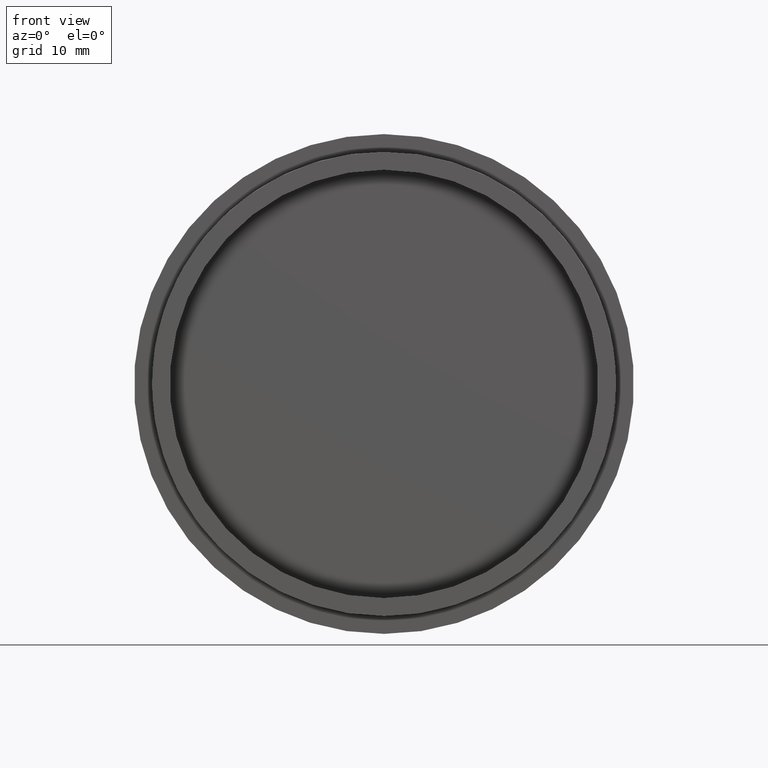
[diagram: clean part render]
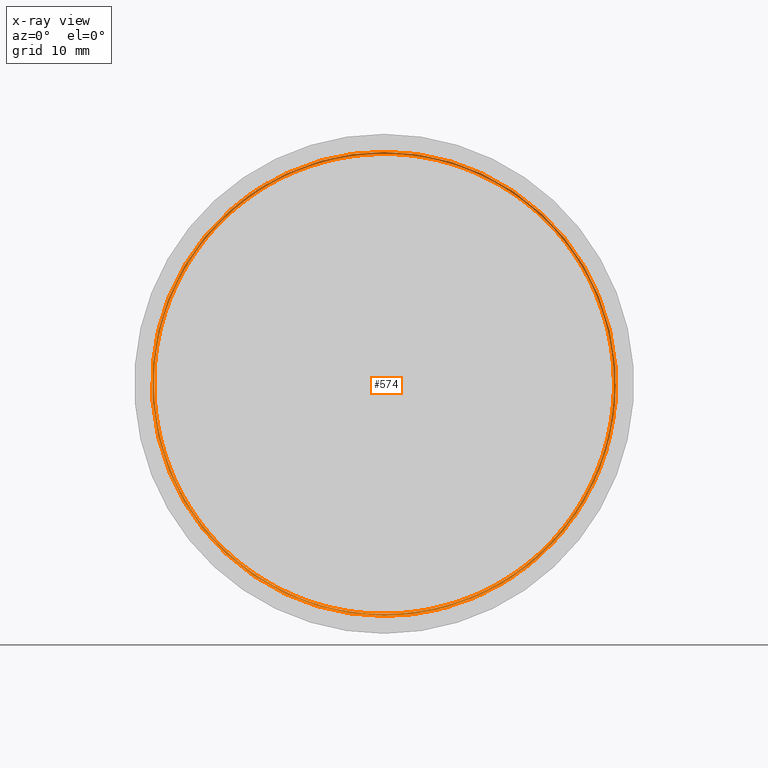
[diagram: x-ray — body ghosted, one internal face saturated and labeled with its STEP entity id]
A machine part, front view, then the same camera in x-ray: the body is ghosted and one INTERNAL B-rep face — a face not visible from any outside direction — is saturated and labeled: STEP entity #574.
In plain terms, the highlighted face is a freeform B-spline surface patch.
Its self-contained STEP definition (entity closure, byte-faithful):
#1 = CARTESIAN_POINT ( 'NONE',  ( -25.82814808468750911, 2.771093749566424069, 10.69836922765823672 ) ) ;
#6 = CARTESIAN_POINT ( 'NONE',  ( 10.69836922765824738, 3.708593749566424513, 25.82814808468749490 ) ) ;
#7 = CARTESIAN_POINT ( 'NONE',  ( 1.592040838891559095E-15, 3.937500000000000000, -26.00000000000000000 ) ) ;
#9 = CARTESIAN_POINT ( 'NONE',  ( -18.38477631085023845, 1.968750000000000000, 18.38477631085023134 ) ) ;
#11 = CARTESIAN_POINT ( 'NONE',  ( 25.99999999999999289, 4.453125000000000888, 10.76955262170048933 ) ) ;
#24 = CARTESIAN_POINT ( 'NONE',  ( -25.82814808468749845, 2.724218749566424069, -3.163035887981638799E-15 ) ) ;
#30 = CARTESIAN_POINT ( 'NONE',  ( -25.82814808468749845, 4.177343749566424513, -10.69836922765824383 ) ) ;
#48 = CARTESIAN_POINT ( 'NONE',  ( 25.82814808468749135, 3.802343749566424513, 10.69836922765825982 ) ) ;
#50 = VERTEX_POINT ( 'NONE', #1475 ) ;
#57 = CARTESIAN_POINT ( 'NONE',  ( -18.38477631085023845, 1.218750000000000000, 18.38477631085023134 ) ) ;
#58 = CARTESIAN_POINT ( 'NONE',  ( 1.592040838891559095E-15, 2.437500000000000000, -26.00000000000000000 ) ) ;
#87 = CARTESIAN_POINT ( 'NONE',  ( 18.26325865617286937, 4.692968749566424513, -18.26325865617286937 ) ) ;
#107 = CARTESIAN_POINT ( 'NONE',  ( 1.592040838891559095E-15, 0.9375000000000000000, -26.00000000000000000 ) ) ;
#116 = CARTESIAN_POINT ( 'NONE',  ( 25.82814808468749845, 3.849218749566424069, 0.000000000000000000 ) ) ;
#137 = CARTESIAN_POINT ( 'NONE',  ( -26.00000000000000000, 3.375000000000000000, -3.184081677783118191E-15 ) ) ;
#138 = CARTESIAN_POINT ( 'NONE',  ( -4.776122516674677089E-15, 2.812500000000000000, 26.00000000000000000 ) ) ;
#144 = CARTESIAN_POINT ( 'NONE',  ( 10.76955262170047689, 4.359375000000000000, 25.99999999999999645 ) ) ;
#168 = CARTESIAN_POINT ( 'NONE',  ( 1.592040838891559095E-15, 3.937500000000000000, -26.00000000000000000 ) ) ;
#170 = ORIENTED_EDGE ( 'NONE', *, *, #4417, .T. ) ;
#175 = CARTESIAN_POINT ( 'NONE',  ( 18.38477631085023489, 4.593750000000000000, -18.38477631085023489 ) ) ;
#176 = VERTEX_POINT ( 'NONE', #138 ) ;
#184 = CARTESIAN_POINT ( 'NONE',  ( -26.00000000000001066, 4.171875000000000888, 10.76955262170046623 ) ) ;
#196 = CARTESIAN_POINT ( 'NONE',  ( -10.76955262170047156, 3.234375000000000888, -26.00000000000000000 ) ) ;
#211 = CARTESIAN_POINT ( 'NONE',  ( 18.38477631085022779, 1.406250000000000000, 18.38477631085023845 ) ) ;
#223 = CARTESIAN_POINT ( 'NONE',  ( -10.76955262170047156, 0.2343750000000000000, -26.00000000000000000 ) ) ;
#226 = CARTESIAN_POINT ( 'NONE',  ( -4.776122516674677089E-15, 3.562500000000000000, 26.00000000000000000 ) ) ;
#232 = CARTESIAN_POINT ( 'NONE',  ( -18.26325865617286581, 1.130468749566424069, -18.26325865617286937 ) ) ;
#239 = CARTESIAN_POINT ( 'NONE',  ( 1.592040838891559095E-15, 2.437500000000000000, -26.00000000000000000 ) ) ;
#259 = CARTESIAN_POINT ( 'NONE',  ( -10.69836922765825626, 0.6148437495664240693, 25.82814808468749135 ) ) ;
#266 = CARTESIAN_POINT ( 'NONE',  ( -18.38477631085023134, 2.531250000000000000, -18.38477631085023489 ) ) ;
#285 = CARTESIAN_POINT ( 'NONE',  ( 10.69836922765824738, 2.208593749566424069, 25.82814808468749490 ) ) ;
#288 = CARTESIAN_POINT ( 'NONE',  ( -25.82814808468750911, 0.5210937495664241803, 10.69836922765823672 ) ) ;
#293 = CARTESIAN_POINT ( 'NONE',  ( 10.76955262170047511, 2.390625000000000000, -26.00000000000000000 ) ) ;
#312 = CARTESIAN_POINT ( 'NONE',  ( -4.744553831972457804E-15, 0.6617187495664241803, 25.82814808468749845 ) ) ;
#314 = ORIENTED_EDGE ( 'NONE', *, *, #1505, .T. ) ;
#322 = CARTESIAN_POINT ( 'NONE',  ( 26.00000000000000000, 4.500000000000000888, 0.000000000000000000 ) ) ;
#360 = CARTESIAN_POINT ( 'NONE',  ( -18.26325865617286581, 4.880468749566424513, -18.26325865617286937 ) ) ;
#363 = CARTESIAN_POINT ( 'NONE',  ( -18.26325865617287292, 1.317968749566424291, 18.26325865617286581 ) ) ;
#383 = CARTESIAN_POINT ( 'NONE',  ( -18.26325865617287292, 4.317968749566424513, 18.26325865617286581 ) ) ;
#384 = CARTESIAN_POINT ( 'NONE',  ( 26.00000000000000000, 1.500000000000000000, 0.000000000000000000 ) ) ;
#386 = CARTESIAN_POINT ( 'NONE',  ( 25.82814808468749845, 1.599218749566424069, 0.000000000000000000 ) ) ;
#391 = CARTESIAN_POINT ( 'NONE',  ( -26.00000000000000000, 2.578125000000000000, -10.76955262170047334 ) ) ;
#407 = CARTESIAN_POINT ( 'NONE',  ( -10.69836922765824028, 4.833593749566424513, -25.82814808468749845 ) ) ;
#410 = CARTESIAN_POINT ( 'NONE',  ( 25.82814808468749845, 2.349218749566424069, 0.000000000000000000 ) ) ;
#412 = LINE ( 'NONE', #4266, #416 ) ;
#414 = CARTESIAN_POINT ( 'NONE',  ( -26.00000000000000000, 2.625000000000000000, -3.184081677783118191E-15 ) ) ;
#415 = CARTESIAN_POINT ( 'NONE',  ( 10.76955262170047511, 0.8906250000000001110, -26.00000000000000000 ) ) ;
#416 = VECTOR ( 'NONE', #5474, 1000.000000000000114 ) ;
#433 = CARTESIAN_POINT ( 'NONE',  ( -10.69836922765824028, 2.583593749566424069, -25.82814808468749845 ) ) ;
#439 = CARTESIAN_POINT ( 'NONE',  ( 10.69836922765824738, 4.458593749566424513, 25.82814808468749490 ) ) ;
#454 = CARTESIAN_POINT ( 'NONE',  ( -25.82814808468750911, 3.521093749566424513, 10.69836922765823672 ) ) ;
#462 = CARTESIAN_POINT ( 'NONE',  ( -26.00000000000000000, 1.125000000000000222, -3.184081677783118191E-15 ) ) ;
#473 = CARTESIAN_POINT ( 'NONE',  ( 1.592040838891559095E-15, 0.9375000000000000000, -26.00000000000000000 ) ) ;
#491 = CARTESIAN_POINT ( 'NONE',  ( -26.00000000000000000, 1.078125000000000222, -10.76955262170047511 ) ) ;
#513 = ORIENTED_EDGE ( 'NONE', *, *, #3459, .T. ) ;
#521 = CARTESIAN_POINT ( 'NONE',  ( -25.82814808468749845, 4.974218749566424513, -3.163035887981638799E-15 ) ) ;
#541 = CARTESIAN_POINT ( 'NONE',  ( 26.00000000000000000, 3.750000000000000000, 0.000000000000000000 ) ) ;
#543 = ORIENTED_EDGE ( 'NONE', *, *, #3501, .T. ) ;
#574 = ADVANCED_FACE ( 'NONE', ( #1617 ), #1287, .T. ) ;
#586 = CARTESIAN_POINT ( 'NONE',  ( -26.00000000000000000, 4.078125000000000000, -10.76955262170047511 ) ) ;
#595 = CARTESIAN_POINT ( 'NONE',  ( -10.76955262170042005, 4.734374999999999112, -26.00000000000004263 ) ) ;
#601 = CARTESIAN_POINT ( 'NONE',  ( -18.38477631085023845, 1.218750000000000000, 18.38477631085023134 ) ) ;
#617 = CARTESIAN_POINT ( 'NONE',  ( -26.00000000000000000, 1.875000000000000000, -3.184081677783118191E-15 ) ) ;
#630 = CARTESIAN_POINT ( 'NONE',  ( 25.99999999999999289, 3.703125000000000444, 10.76955262170048933 ) ) ;
#645 = CARTESIAN_POINT ( 'NONE',  ( -26.00000000000001066, 2.671875000000000000, 10.76955262170046623 ) ) ;
#649 = VERTEX_POINT ( 'NONE', #1232 ) ;
#656 = CARTESIAN_POINT ( 'NONE',  ( -10.76955262170047867, 0.5156250000000000000, 25.99999999999999645 ) ) ;
#664 = CARTESIAN_POINT ( 'NONE',  ( 18.26325865617286937, 1.692968749566424069, -18.26325865617286937 ) ) ;
#672 = CARTESIAN_POINT ( 'NONE',  ( 26.00000000000000000, 3.000000000000000000, 0.000000000000000000 ) ) ;
#676 = VERTEX_POINT ( 'NONE', #7 ) ;
#692 = CARTESIAN_POINT ( 'NONE',  ( -10.69836922765824028, 1.083593749566424069, -25.82814808468749845 ) ) ;
#700 = CARTESIAN_POINT ( 'NONE',  ( 25.99999999999999289, 2.203125000000000000, 10.76955262170048933 ) ) ;
#711 = CARTESIAN_POINT ( 'NONE',  ( 26.00000000000000000, 0.04687500000000002776, -10.76955262170047334 ) ) ;
#721 = CARTESIAN_POINT ( 'NONE',  ( -10.69836922765825626, 1.364843749566424291, 25.82814808468749135 ) ) ;
#726 = CARTESIAN_POINT ( 'NONE',  ( 1.592040838891559095E-15, 2.437500000000000000, -26.00000000000000000 ) ) ;
#745 = CARTESIAN_POINT ( 'NONE',  ( -10.69836922765824028, 1.833593749566424291, -25.82814808468749845 ) ) ;
#748 = CARTESIAN_POINT ( 'NONE',  ( -10.69836922765824028, 0.3335937495664240693, -25.82814808468749845 ) ) ;
#758 = CARTESIAN_POINT ( 'NONE',  ( 18.38477631085022779, 2.906250000000000000, 18.38477631085023845 ) ) ;
#770 = CARTESIAN_POINT ( 'NONE',  ( -25.82814808468749845, 3.474218749566424069, -3.163035887981638799E-15 ) ) ;
#774 = CARTESIAN_POINT ( 'NONE',  ( 10.69836922765824738, 0.7085937495664241803, 25.82814808468749490 ) ) ;
#797 = CARTESIAN_POINT ( 'NONE',  ( 25.82814808468749845, 4.646093749566424513, -10.69836922765824205 ) ) ;
#800 = CARTESIAN_POINT ( 'NONE',  ( 18.26325865617286226, 1.505468749566423847, 18.26325865617287292 ) ) ;
#805 = CARTESIAN_POINT ( 'NONE',  ( -26.00000000000001066, 2.671875000000000000, 10.76955262170046623 ) ) ;
#812 = CARTESIAN_POINT ( 'NONE',  ( 10.76955262170047689, 2.859375000000000000, 25.99999999999999645 ) ) ;
#822 = CARTESIAN_POINT ( 'NONE',  ( 18.26325865617286226, 4.505468749566424513, 18.26325865617287292 ) ) ;
#826 = CARTESIAN_POINT ( 'NONE',  ( -25.82814808468749845, 1.974218749566423847, -3.163035887981638799E-15 ) ) ;
#831 = CARTESIAN_POINT ( 'NONE',  ( -4.776122516674677089E-15, 2.812500000000000000, 26.00000000000000000 ) ) ;
#833 = CARTESIAN_POINT ( 'NONE',  ( 18.38477631085022779, 0.6562500000000000000, 18.38477631085023845 ) ) ;
#850 = CARTESIAN_POINT ( 'NONE',  ( -25.82814808468749845, 4.177343749566424513, -10.69836922765824383 ) ) ;
#853 = CARTESIAN_POINT ( 'NONE',  ( -18.26325865617286581, 2.630468749566424069, -18.26325865617286937 ) ) ;
#859 = CARTESIAN_POINT ( 'NONE',  ( -10.69836922765825626, 3.614843749566424513, 25.82814808468749135 ) ) ;
#877 = CARTESIAN_POINT ( 'NONE',  ( 10.69836922765824383, 3.989843749566424957, -25.82814808468749845 ) ) ;
#885 = CARTESIAN_POINT ( 'NONE',  ( 1.581517943990819399E-15, 4.036718749566424513, -25.82814808468749845 ) ) ;
#907 = CARTESIAN_POINT ( 'NONE',  ( 25.99999999999999289, 2.203125000000000000, 10.76955262170048933 ) ) ;
#911 = CARTESIAN_POINT ( 'NONE',  ( 1.592040838891559095E-15, 0.1875000000000000000, -26.00000000000000000 ) ) ;
#915 = CARTESIAN_POINT ( 'NONE',  ( -10.76955262170044669, 1.734374999999999778, -26.00000000000002487 ) ) ;
#939 = CARTESIAN_POINT ( 'NONE',  ( 26.00000000000000000, 4.546875000000000000, -10.76955262170047334 ) ) ;
#941 = CARTESIAN_POINT ( 'NONE',  ( 10.76955262170047511, 0.1406250000000000278, -26.00000000000000000 ) ) ;
#963 = CARTESIAN_POINT ( 'NONE',  ( 10.76955262170048577, 0.8906249999999998890, -25.99999999999998579 ) ) ;
#979 =( BOUNDED_CURVE ( )  B_SPLINE_CURVE ( 2, ( #2448, #4893, #4106, #1953, #3227, #4134, #2833, #4471, #4947, #1614, #2422, #259, #312, #2882, #3697, #5335, #5393, #2030, #5365, #1509, #1591, #692, #232, #3308, #3721, #4026, #3283, #5000, #2778, #2861, #1564, #4975, #1925, #1174, #664, #4554, #2396, #745, #5418, #4921, #2368, #3618, #1117, #2807, #4580, #285, #5308, #4499, #1978, #3013, #2578, #3376, #3845, #2932, #2499, #1664, #3330, #1689, #4187, #2526, #5468, #2108, #1327, #5097, #4633, #3404, #2059, #5021, #1639, #3354, #1221, #1299, #770, #454, #2908, #4211, #3793, #4608, #5491, #48, #4262, #2986, #4687, #877, #3744, #1270, #2159, #850, #1743, #2959, #383, #3432, #5046, #1716, #822, #1247, #5125, #797, #2553, #2473, #4161, #407, #360, #2083, #5071, #3769, #4659, #4236, #5441 ),
 .UNSPECIFIED., .F., .F. ) 
 B_SPLINE_CURVE_WITH_KNOTS ( ( 3, 2, 2, 2, 2, 2, 2, 2, 2, 2, 2, 2, 2, 2, 2, 2, 2, 2, 2, 2, 2, 2, 2, 2, 2, 2, 2, 2, 2, 2, 2, 2, 2, 2, 2, 2, 2, 2, 2, 2, 2, 2, 2, 2, 2, 2, 2, 2, 2, 2, 2, 2, 2, 2, 3 ),
 ( 0.000000000000000000, 0.01785714285714285615, 0.03571428571428571230, 0.05357142857142856845, 0.07142857142857142461, 0.08928571428571428770, 0.1071428571428571369, 0.1250000000000000000, 0.1428571428571428492, 0.1607142857142857262, 0.1785714285714285754, 0.1964285714285714246, 0.2142857142857142738, 0.2321428571428571508, 0.2500000000000000000, 0.2678571428571428492, 0.2857142857142856984, 0.3035714285714285476, 0.3214285714285714524, 0.3392857142857143016, 0.3571428571428571508, 0.3750000000000000000, 0.3928571428571428492, 0.4107142857142856984, 0.4285714285714285476, 0.4464285714285714524, 0.4642857142857143016, 0.4821428571428571508, 0.5000000000000000000, 0.5178571428571429047, 0.5357142857142856984, 0.5535714285714286031, 0.5714285714285713969, 0.5892857142857143016, 0.6071428571428570953, 0.6250000000000000000, 0.6428571428571429047, 0.6607142857142856984, 0.6785714285714286031, 0.6964285714285713969, 0.7142857142857143016, 0.7321428571428570953, 0.7500000000000000000, 0.7678571428571429047, 0.7857142857142856984, 0.8035714285714286031, 0.8214285714285713969, 0.8392857142857143016, 0.8571428571428570953, 0.8750000000000000000, 0.8928571428571429047, 0.9107142857142856984, 0.9285714285714286031, 0.9464285714285713969, 0.9524150975706495714 ),
 .UNSPECIFIED. ) 
 CURVE ( )  GEOMETRIC_REPRESENTATION_ITEM ( )  RATIONAL_B_SPLINE_CURVE ( ( 1.000000000000000000, 0.9238795325112867385, 1.000000000000000000, 0.9238795325112867385, 1.000000000000000000, 0.9238795325112867385, 1.000000000000000000, 0.9238795325112867385, 1.000000000000000000, 0.9238795325112867385, 1.000000000000000000, 0.9238795325112867385, 1.000000000000000000, 0.9238795325112867385, 1.000000000000000000, 0.9238795325112867385, 1.000000000000000000, 0.9238795325112867385, 1.000000000000000000, 0.9238795325112867385, 1.000000000000000000, 0.9238795325112867385, 1.000000000000000000, 0.9238795325112867385, 1.000000000000000000, 0.9238795325112867385, 1.000000000000000000, 0.9238795325112867385, 1.000000000000000000, 0.9238795325112867385, 1.000000000000000000, 0.9238795325112867385, 1.000000000000000000, 0.9238795325112867385, 1.000000000000000000, 0.9238795325112867385, 1.000000000000000000, 0.9238795325112867385, 1.000000000000000000, 0.9238795325112867385, 1.000000000000000000, 0.9238795325112867385, 1.000000000000000000, 0.9238795325112867385, 1.000000000000000000, 0.9238795325112867385, 1.000000000000000000, 0.9238795325112867385, 1.000000000000000000, 0.9238795325112867385, 1.000000000000000000, 0.9238795325112867385, 1.000000000000000000, 0.9238795325112867385, 1.000000000000000000, 0.9238795325112867385, 1.000000000000000000, 0.9238795325112867385, 1.000000000000000000, 0.9238795325112867385, 1.000000000000000000, 0.9238795325112867385, 1.000000000000000000, 0.9238795325112867385, 1.000000000000000000, 0.9238795325112867385, 1.000000000000000000, 0.9238795325112867385, 1.000000000000000000, 0.9238795325112867385, 1.000000000000000000, 0.9238795325112867385, 1.000000000000000000, 0.9238795325112867385, 1.000000000000000000, 0.9238795325112867385, 1.000000000000000000, 0.9238795325112867385, 1.000000000000000000, 0.9238795325112867385, 1.000000000000000000, 0.9238795325112867385, 1.000000000000000000, 0.9238795325112867385, 1.000000000000000000, 0.9238795325112867385, 1.000000000000000000, 0.9238795325112867385, 1.000000000000000000, 0.9238795325112867385, 1.000000000000000000, 0.9238795325112867385, 1.000000000000000000, 0.9238795325112867385, 1.000000000000000000, 0.9238795325112867385, 1.000000000000000000, 0.9238795325112867385, 1.000000000000000000, 0.9238795325112867385, 1.000000000000000000, 0.9238795325112867385, 1.000000000000000000, 0.9238795325112867385, 1.000000000000000000, 0.9238795325112867385, 1.000000000000000000, 0.9744809585601700297, 0.9660722028947756890 ) ) 
 REPRESENTATION_ITEM ( '' )  );
#994 = CARTESIAN_POINT ( 'NONE',  ( 1.592040838891559095E-15, 0.9375000000000000000, -26.00000000000000000 ) ) ;
#996 = ORIENTED_EDGE ( 'NONE', *, *, #3794, .T. ) ;
#1011 = CARTESIAN_POINT ( 'NONE',  ( -12.91407256288082728, 5.098855568033193286, 22.36783322821402109 ) ) ;
#1022 = CARTESIAN_POINT ( 'NONE',  ( 1.592040838891559095E-15, 0.1875000000000000000, -26.00000000000000000 ) ) ;
#1038 = CARTESIAN_POINT ( 'NONE',  ( 18.38477631085023489, 3.843750000000000000, -18.38477631085023489 ) ) ;
#1050 = CARTESIAN_POINT ( 'NONE',  ( 18.38477631085022779, 2.156250000000000000, 18.38477631085023845 ) ) ;
#1054 = CARTESIAN_POINT ( 'NONE',  ( 10.76955262170048222, 0.6093750000000001110, 25.99999999999998934 ) ) ;
#1070 = CARTESIAN_POINT ( 'NONE',  ( 1.592040838891559095E-15, 3.937500000000000000, -26.00000000000000000 ) ) ;
#1080 = CARTESIAN_POINT ( 'NONE',  ( -4.776122516674677089E-15, 2.062500000000000000, 26.00000000000000000 ) ) ;
#1097 = CARTESIAN_POINT ( 'NONE',  ( -18.38477631085023845, 4.218750000000000000, 18.38477631085023134 ) ) ;
#1109 = CARTESIAN_POINT ( 'NONE',  ( 26.00000000000000000, 2.250000000000000444, 0.000000000000000000 ) ) ;
#1117 = CARTESIAN_POINT ( 'NONE',  ( -18.26325865617287292, 2.067968749566424069, 18.26325865617286581 ) ) ;
#1120 = CARTESIAN_POINT ( 'NONE',  ( -18.26325865617286581, 1.880468749566424291, -18.26325865617286937 ) ) ;
#1127 = CARTESIAN_POINT ( 'NONE',  ( 26.00000000000000000, 2.250000000000000444, 0.000000000000000000 ) ) ;
#1140 =( BOUNDED_CURVE ( )  B_SPLINE_CURVE ( 2, ( #4768, #1054, #2747, #1831, #4861, #4799, #3104, #963, #107 ),
 .UNSPECIFIED., .F., .F. ) 
 B_SPLINE_CURVE_WITH_KNOTS ( ( 3, 2, 2, 2, 3 ),
 ( 0.1071428571428571508, 0.1250000000000000000, 0.1428571428571428492, 0.1607142857142856984, 0.1785714285714285476 ),
 .UNSPECIFIED. ) 
 CURVE ( )  GEOMETRIC_REPRESENTATION_ITEM ( )  RATIONAL_B_SPLINE_CURVE ( ( 0.9999999999999998890, 0.9238795325112868495, 1.000000000000000000, 0.9238795325112867385, 1.000000000000000000, 0.9238795325112867385, 1.000000000000000000, 0.9238795325112868495, 0.9999999999999998890 ) ) 
 REPRESENTATION_ITEM ( '' )  );
#1143 = ORIENTED_EDGE ( 'NONE', *, *, #1665, .T. ) ;
#1155 = CARTESIAN_POINT ( 'NONE',  ( -26.00000000000000000, 2.625000000000000000, -3.184081677783118191E-15 ) ) ;
#1174 = CARTESIAN_POINT ( 'NONE',  ( 25.82814808468749845, 1.646093749566424069, -10.69836922765824205 ) ) ;
#1185 = CARTESIAN_POINT ( 'NONE',  ( -4.776122516674677089E-15, 2.812500000000000000, 26.00000000000000000 ) ) ;
#1199 = CARTESIAN_POINT ( 'NONE',  ( -25.82814808468749845, 0.4742187495664241248, -3.163035887981638799E-15 ) ) ;
#1205 = CARTESIAN_POINT ( 'NONE',  ( -10.76955262170048577, 2.765625000000000000, 25.99999999999999289 ) ) ;
#1221 = CARTESIAN_POINT ( 'NONE',  ( -18.26325865617286581, 3.380468749566424069, -18.26325865617286937 ) ) ;
#1225 = CARTESIAN_POINT ( 'NONE',  ( -18.26325865617287292, 0.5679687495664240693, 18.26325865617286581 ) ) ;
#1232 = CARTESIAN_POINT ( 'NONE',  ( 1.592040838891559095E-15, 3.187500000000000444, -26.00000000000000000 ) ) ;
#1247 = CARTESIAN_POINT ( 'NONE',  ( 25.82814808468749135, 4.552343749566424513, 10.69836922765825982 ) ) ;
#1250 = CARTESIAN_POINT ( 'NONE',  ( -18.26325865617287292, 2.817968749566424069, 18.26325865617286581 ) ) ;
#1254 = CARTESIAN_POINT ( 'NONE',  ( 25.82814808468749135, 4.552343749566425402, 10.69836922765825982 ) ) ;
#1256 = CARTESIAN_POINT ( 'NONE',  ( 10.76955262170047511, 4.640625000000000000, -26.00000000000000000 ) ) ;
#1270 = CARTESIAN_POINT ( 'NONE',  ( -10.69836922765824028, 4.083593749566424513, -25.82814808468749845 ) ) ;
#1273 = CARTESIAN_POINT ( 'NONE',  ( 18.26325865617286226, 3.005468749566424069, 18.26325865617287292 ) ) ;
#1278 = CARTESIAN_POINT ( 'NONE',  ( -12.91407256288082728, 5.098855568033194174, 22.36783322821402109 ) ) ;
#1287 =( BOUNDED_SURFACE ( )  B_SPLINE_SURFACE ( 1, 2, ( 
 ( #1594, #1982, #4557, #5003, #5444, #748, #4950, #2452, #1199, #288, #1225, #4583, #1567, #774, #2477, #2911, #3286, #3701, #4529, #1642, #4611, #2034, #3674, #4502, #4164, #5396, #363, #721, #4978, #3747, #800, #2503, #386, #3647, #5339, #1539, #3230, #4924, #1120, #3797, #826, #3821, #2557, #5074, #1670, #5049, #2962, #4214, #410, #1692, #2529, #1719, #2086, #433, #853, #4239, #24, #1, #1250, #2136, #3380, #3407, #1273, #2936, #4636, #5100, #3772, #1302, #2112, #4662, #2989, #5471, #3357, #2191, #4748, #859, #1334, #6, #2994, #1364, #116, #5163, #2562, #3053, #885, #2639, #3022, #30, #4327, #3911, #3879, #1698, #3385, #439, #1749, #1254, #4719, #3503, #87, #5079, #4270, #2142, #4668, #2586, #521, #1811, #5132, #2941, #1278 ),
 ( #1781, #3827, #4693, #941, #911, #2223, #4641, #2610, #3853, #4245, #1724, #2967, #3471, #4294, #833, #2534, #3411, #3802, #4220, #415, #5106, #2117, #1308, #491, #462, #2166, #57, #3440, #4523, #4007, #211, #1545, #3653, #1988, #4034, #4452, #1904, #2404, #5374, #4479, #617, #1457, #5345, #2349, #2788, #2734, #5286, #700, #1127, #1516, #4875, #293, #239, #4090, #266, #2814, #1155, #645, #3594, #3680, #1961, #4902, #5257, #4846, #672, #3180, #2761, #1932, #1488, #1574, #2292, #3237, #4063, #2378, #4508, #3625, #3147, #4930, #5316, #3264, #3209, #4425, #1038, #4956, #1070, #2322, #2841, #586, #3977, #184, #1097, #1876, #3566, #2535, #5426, #3707, #322, #2916, #2429, #1256, #3292, #1700, #5008, #2015, #3803, #4983, #2870, #5031, #3315 ) ),
 .UNSPECIFIED., .F., .F., .F. ) 
 B_SPLINE_SURFACE_WITH_KNOTS ( ( 2, 2 ),
 ( 3, 2, 2, 2, 2, 2, 2, 2, 2, 2, 2, 2, 2, 2, 2, 2, 2, 2, 2, 2, 2, 2, 2, 2, 2, 2, 2, 2, 2, 2, 2, 2, 2, 2, 2, 2, 2, 2, 2, 2, 2, 2, 2, 2, 2, 2, 2, 2, 2, 2, 2, 2, 2, 2, 3 ),
 ( 0.000000000000000000, 1.000000000000000000 ),
 ( 0.000000000000000000, 0.01785714285714285615, 0.03571428571428571230, 0.05357142857142856845, 0.07142857142857142461, 0.08928571428571428770, 0.1071428571428571369, 0.1250000000000000000, 0.1428571428571428492, 0.1607142857142857262, 0.1785714285714285754, 0.1964285714285714246, 0.2142857142857142738, 0.2321428571428571508, 0.2500000000000000000, 0.2678571428571428492, 0.2857142857142856984, 0.3035714285714285476, 0.3214285714285714524, 0.3392857142857143016, 0.3571428571428571508, 0.3750000000000000000, 0.3928571428571428492, 0.4107142857142856984, 0.4285714285714285476, 0.4464285714285714524, 0.4642857142857143016, 0.4821428571428571508, 0.5000000000000000000, 0.5178571428571429047, 0.5357142857142856984, 0.5535714285714286031, 0.5714285714285713969, 0.5892857142857143016, 0.6071428571428570953, 0.6250000000000000000, 0.6428571428571429047, 0.6607142857142856984, 0.6785714285714286031, 0.6964285714285713969, 0.7142857142857143016, 0.7321428571428570953, 0.7500000000000000000, 0.7678571428571429047, 0.7857142857142856984, 0.8035714285714286031, 0.8214285714285713969, 0.8392857142857143016, 0.8571428571428570953, 0.8750000000000000000, 0.8928571428571429047, 0.9107142857142856984, 0.9285714285714286031, 0.9464285714285713969, 0.9524150975706495714 ),
 .UNSPECIFIED. ) 
 GEOMETRIC_REPRESENTATION_ITEM ( )  RATIONAL_B_SPLINE_SURFACE ( (
 ( 1.000000000000000000, 0.9238795325112867385, 1.000000000000000000, 0.9238795325112867385, 1.000000000000000000, 0.9238795325112867385, 1.000000000000000000, 0.9238795325112867385, 1.000000000000000000, 0.9238795325112867385, 1.000000000000000000, 0.9238795325112867385, 1.000000000000000000, 0.9238795325112867385, 1.000000000000000000, 0.9238795325112867385, 1.000000000000000000, 0.9238795325112867385, 1.000000000000000000, 0.9238795325112867385, 1.000000000000000000, 0.9238795325112867385, 1.000000000000000000, 0.9238795325112867385, 1.000000000000000000, 0.9238795325112867385, 1.000000000000000000, 0.9238795325112867385, 1.000000000000000000, 0.9238795325112867385, 1.000000000000000000, 0.9238795325112867385, 1.000000000000000000, 0.9238795325112867385, 1.000000000000000000, 0.9238795325112867385, 1.000000000000000000, 0.9238795325112867385, 1.000000000000000000, 0.9238795325112867385, 1.000000000000000000, 0.9238795325112867385, 1.000000000000000000, 0.9238795325112867385, 1.000000000000000000, 0.9238795325112867385, 1.000000000000000000, 0.9238795325112867385, 1.000000000000000000, 0.9238795325112867385, 1.000000000000000000, 0.9238795325112867385, 1.000000000000000000, 0.9238795325112867385, 1.000000000000000000, 0.9238795325112867385, 1.000000000000000000, 0.9238795325112867385, 1.000000000000000000, 0.9238795325112867385, 1.000000000000000000, 0.9238795325112867385, 1.000000000000000000, 0.9238795325112867385, 1.000000000000000000, 0.9238795325112867385, 1.000000000000000000, 0.9238795325112867385, 1.000000000000000000, 0.9238795325112867385, 1.000000000000000000, 0.9238795325112867385, 1.000000000000000000, 0.9238795325112867385, 1.000000000000000000, 0.9238795325112867385, 1.000000000000000000, 0.9238795325112867385, 1.000000000000000000, 0.9238795325112867385, 1.000000000000000000, 0.9238795325112867385, 1.000000000000000000, 0.9238795325112867385, 1.000000000000000000, 0.9238795325112867385, 1.000000000000000000, 0.9238795325112867385, 1.000000000000000000, 0.9238795325112867385, 1.000000000000000000, 0.9238795325112867385, 1.000000000000000000, 0.9238795325112867385, 1.000000000000000000, 0.9238795325112867385, 1.000000000000000000, 0.9238795325112867385, 1.000000000000000000, 0.9238795325112867385, 1.000000000000000000, 0.9238795325112867385, 1.000000000000000000, 0.9238795325112867385, 1.000000000000000000, 0.9238795325112867385, 1.000000000000000000, 0.9744809585601700297, 0.9660722028947756890),
 ( 1.000000000000000000, 0.9238795325112867385, 1.000000000000000000, 0.9238795325112867385, 1.000000000000000000, 0.9238795325112867385, 1.000000000000000000, 0.9238795325112867385, 1.000000000000000000, 0.9238795325112867385, 1.000000000000000000, 0.9238795325112867385, 1.000000000000000000, 0.9238795325112867385, 1.000000000000000000, 0.9238795325112867385, 1.000000000000000000, 0.9238795325112867385, 1.000000000000000000, 0.9238795325112867385, 1.000000000000000000, 0.9238795325112867385, 1.000000000000000000, 0.9238795325112867385, 1.000000000000000000, 0.9238795325112867385, 1.000000000000000000, 0.9238795325112867385, 1.000000000000000000, 0.9238795325112867385, 1.000000000000000000, 0.9238795325112867385, 1.000000000000000000, 0.9238795325112867385, 1.000000000000000000, 0.9238795325112867385, 1.000000000000000000, 0.9238795325112867385, 1.000000000000000000, 0.9238795325112867385, 1.000000000000000000, 0.9238795325112867385, 1.000000000000000000, 0.9238795325112867385, 1.000000000000000000, 0.9238795325112867385, 1.000000000000000000, 0.9238795325112867385, 1.000000000000000000, 0.9238795325112867385, 1.000000000000000000, 0.9238795325112867385, 1.000000000000000000, 0.9238795325112867385, 1.000000000000000000, 0.9238795325112867385, 1.000000000000000000, 0.9238795325112867385, 1.000000000000000000, 0.9238795325112867385, 1.000000000000000000, 0.9238795325112867385, 1.000000000000000000, 0.9238795325112867385, 1.000000000000000000, 0.9238795325112867385, 1.000000000000000000, 0.9238795325112867385, 1.000000000000000000, 0.9238795325112867385, 1.000000000000000000, 0.9238795325112867385, 1.000000000000000000, 0.9238795325112867385, 1.000000000000000000, 0.9238795325112867385, 1.000000000000000000, 0.9238795325112867385, 1.000000000000000000, 0.9238795325112867385, 1.000000000000000000, 0.9238795325112867385, 1.000000000000000000, 0.9238795325112867385, 1.000000000000000000, 0.9238795325112867385, 1.000000000000000000, 0.9238795325112867385, 1.000000000000000000, 0.9238795325112867385, 1.000000000000000000, 0.9238795325112867385, 1.000000000000000000, 0.9238795325112867385, 1.000000000000000000, 0.9238795325112867385, 1.000000000000000000, 0.9238795325112867385, 1.000000000000000000, 0.9238795325112867385, 1.000000000000000000, 0.9238795325112867385, 1.000000000000000000, 0.9238795325112867385, 1.000000000000000000, 0.9238795325112867385, 1.000000000000000000, 0.9744809585601700297, 0.9660722028947756890) ) ) 
 REPRESENTATION_ITEM ( '' )  SURFACE ( )  );
#1299 = CARTESIAN_POINT ( 'NONE',  ( -25.82814808468749845, 3.427343749566424513, -10.69836922765824383 ) ) ;
#1302 = CARTESIAN_POINT ( 'NONE',  ( 10.69836922765824383, 3.239843749566424513, -25.82814808468749845 ) ) ;
#1308 = CARTESIAN_POINT ( 'NONE',  ( -18.38477631085023134, 1.031250000000000000, -18.38477631085023489 ) ) ;
#1327 = CARTESIAN_POINT ( 'NONE',  ( 18.26325865617286226, 3.005468749566424069, 18.26325865617287292 ) ) ;
#1334 = CARTESIAN_POINT ( 'NONE',  ( -4.744553831972457804E-15, 3.661718749566424069, 25.82814808468749845 ) ) ;
#1364 = CARTESIAN_POINT ( 'NONE',  ( 25.82814808468749135, 3.802343749566424957, 10.69836922765825982 ) ) ;
#1385 = CARTESIAN_POINT ( 'NONE',  ( -18.38477631085023845, 3.468750000000000000, 18.38477631085023134 ) ) ;
#1418 = CARTESIAN_POINT ( 'NONE',  ( -18.38477631085023134, 1.031250000000000000, -18.38477631085023489 ) ) ;
#1457 = CARTESIAN_POINT ( 'NONE',  ( -26.00000000000001066, 1.921875000000000000, 10.76955262170046623 ) ) ;
#1475 = CARTESIAN_POINT ( 'NONE',  ( -12.99999851069322254, 4.999818409233385275, 22.51666135824700987 ) ) ;
#1489 = ORIENTED_EDGE ( 'NONE', *, *, #1869, .T. ) ;
#1488 = CARTESIAN_POINT ( 'NONE',  ( 1.592040838891559095E-15, 3.187500000000000444, -26.00000000000000000 ) ) ;
#1499 = ORIENTED_EDGE ( 'NONE', *, *, #5149, .T. ) ;
#1501 = CARTESIAN_POINT ( 'NONE',  ( -26.00000000000001066, 3.421875000000000000, 10.76955262170046623 ) ) ;
#1505 = EDGE_CURVE ( 'NONE', #2815, #176, #3108, .T. ) ;
#1509 = CARTESIAN_POINT ( 'NONE',  ( 10.69836922765824383, 0.9898437495664241803, -25.82814808468749845 ) ) ;
#1516 = CARTESIAN_POINT ( 'NONE',  ( 26.00000000000000000, 2.296875000000000000, -10.76955262170047511 ) ) ;
#1539 = CARTESIAN_POINT ( 'NONE',  ( 10.69836922765824383, 1.739843749566424069, -25.82814808468749845 ) ) ;
#1545 = CARTESIAN_POINT ( 'NONE',  ( 25.99999999999999289, 1.453125000000000000, 10.76955262170048933 ) ) ;
#1564 = CARTESIAN_POINT ( 'NONE',  ( 18.26325865617286226, 1.505468749566423847, 18.26325865617287292 ) ) ;
#1567 = CARTESIAN_POINT ( 'NONE',  ( -4.744553831972457804E-15, 0.6617187495664241803, 25.82814808468749845 ) ) ;
#1574 = CARTESIAN_POINT ( 'NONE',  ( -10.76955262170047334, 3.234375000000000000, -26.00000000000000000 ) ) ;
#1591 = CARTESIAN_POINT ( 'NONE',  ( 1.581517943990819399E-15, 1.036718749566424069, -25.82814808468749845 ) ) ;
#1594 = CARTESIAN_POINT ( 'NONE',  ( 25.82814808468749845, 0.09921874956642411092, 0.000000000000000000 ) ) ;
#1614 = CARTESIAN_POINT ( 'NONE',  ( -25.82814808468750911, 0.5210937495664241803, 10.69836922765823672 ) ) ;
#1617 = FACE_OUTER_BOUND ( 'NONE', #3197, .T. ) ;
#1639 = CARTESIAN_POINT ( 'NONE',  ( 1.581517943990819399E-15, 3.286718749566424069, -25.82814808468749845 ) ) ;
#1642 = CARTESIAN_POINT ( 'NONE',  ( 10.69836922765824383, 0.9898437495664241803, -25.82814808468749845 ) ) ;
#1664 = CARTESIAN_POINT ( 'NONE',  ( -25.82814808468749845, 2.677343749566424069, -10.69836922765824383 ) ) ;
#1665 = EDGE_CURVE ( 'NONE', #676, #5258, #3426, .T. ) ;
#1666 = CARTESIAN_POINT ( 'NONE',  ( -4.776122516674677089E-15, 1.312500000000000000, 26.00000000000000000 ) ) ;
#1668 = VERTEX_POINT ( 'NONE', #2141 ) ;
#1670 = CARTESIAN_POINT ( 'NONE',  ( -4.744553831972457804E-15, 2.161718749566424069, 25.82814808468749845 ) ) ;
#1689 = CARTESIAN_POINT ( 'NONE',  ( -25.82814808468750911, 2.771093749566424069, 10.69836922765823672 ) ) ;
#1692 = CARTESIAN_POINT ( 'NONE',  ( 25.82814808468749845, 2.396093749566423625, -10.69836922765824205 ) ) ;
#1698 = CARTESIAN_POINT ( 'NONE',  ( -10.69836922765825626, 4.364843749566425402, 25.82814808468749135 ) ) ;
#1700 = CARTESIAN_POINT ( 'NONE',  ( -10.76955262170047334, 4.734374999999999112, -26.00000000000000000 ) ) ;
#1716 = CARTESIAN_POINT ( 'NONE',  ( 10.69836922765824738, 4.458593749566424513, 25.82814808468749490 ) ) ;
#1719 = CARTESIAN_POINT ( 'NONE',  ( 10.69836922765824383, 2.489843749566424069, -25.82814808468749845 ) ) ;
#1723 = CARTESIAN_POINT ( 'NONE',  ( -10.76955262170047156, 3.984375000000000000, -26.00000000000000000 ) ) ;
#1724 = CARTESIAN_POINT ( 'NONE',  ( -18.38477631085023845, 0.4687500000000000000, 18.38477631085023134 ) ) ;
#1728 = CARTESIAN_POINT ( 'NONE',  ( -18.38477631085023134, 1.781250000000000000, -18.38477631085023489 ) ) ;
#1743 = CARTESIAN_POINT ( 'NONE',  ( -25.82814808468749845, 4.224218749566424513, -3.163035887981638799E-15 ) ) ;
#1749 = CARTESIAN_POINT ( 'NONE',  ( 18.26325865617286226, 4.505468749566424513, 18.26325865617287292 ) ) ;
#1760 = EDGE_CURVE ( 'NONE', #176, #649, #2339, .T. ) ;
#1773 = CARTESIAN_POINT ( 'NONE',  ( 10.76955262170050176, 1.640625000000000000, -25.99999999999997158 ) ) ;
#1781 = CARTESIAN_POINT ( 'NONE',  ( 26.00000000000000000, 1.355252715606880543E-17, 0.000000000000000000 ) ) ;
#1811 = CARTESIAN_POINT ( 'NONE',  ( -25.82814808468750911, 5.021093749566424513, 10.69836922765823672 ) ) ;
#1831 = CARTESIAN_POINT ( 'NONE',  ( 25.99999999999999289, 0.7031250000000000000, 10.76955262170048933 ) ) ;
#1869 = EDGE_CURVE ( 'NONE', #5258, #3488, #4632, .T. ) ;
#1876 = CARTESIAN_POINT ( 'NONE',  ( -10.76955262170048577, 4.265625000000000888, 25.99999999999999289 ) ) ;
#1882 =( BOUNDED_CURVE ( )  B_SPLINE_CURVE ( 2, ( #994, #3580, #1418, #3611, #4020, #5300, #601, #3195, #2307 ),
 .UNSPECIFIED., .F., .T. ) 
 B_SPLINE_CURVE_WITH_KNOTS ( ( 3, 2, 2, 2, 3 ),
 ( 0.1785714285714285476, 0.1964285714285713969, 0.2142857142857142461, 0.2321428571428571508, 0.2500000000000000000 ),
 .UNSPECIFIED. ) 
 CURVE ( )  GEOMETRIC_REPRESENTATION_ITEM ( )  RATIONAL_B_SPLINE_CURVE ( ( 1.000000000000000222, 0.9238795325112866275, 1.000000000000000000, 0.9238795325112867385, 1.000000000000000000, 0.9238795325112867385, 1.000000000000000000, 0.9238795325112867385, 1.000000000000000000 ) ) 
 REPRESENTATION_ITEM ( '' )  );
#1904 = CARTESIAN_POINT ( 'NONE',  ( 1.592040838891559095E-15, 1.687500000000000000, -26.00000000000000000 ) ) ;
#1915 = CARTESIAN_POINT ( 'NONE',  ( -18.38477631085023134, 0.2812500000000000555, -18.38477631085023489 ) ) ;
#1917 =( BOUNDED_CURVE ( )  B_SPLINE_CURVE ( 2, ( #2615, #915, #1728, #2145, #4273, #4223, #9, #5109, #3883 ),
 .UNSPECIFIED., .F., .T. ) 
 B_SPLINE_CURVE_WITH_KNOTS ( ( 3, 2, 2, 2, 3 ),
 ( 0.3214285714285713969, 0.3392857142857142461, 0.3571428571428570953, 0.3750000000000000000, 0.3928571428571428492 ),
 .UNSPECIFIED. ) 
 CURVE ( )  GEOMETRIC_REPRESENTATION_ITEM ( )  RATIONAL_B_SPLINE_CURVE ( ( 1.000000000000000222, 0.9238795325112865164, 1.000000000000000000, 0.9238795325112867385, 1.000000000000000000, 0.9238795325112867385, 1.000000000000000000, 0.9238795325112867385, 1.000000000000000000 ) ) 
 REPRESENTATION_ITEM ( '' )  );
#1919 = CARTESIAN_POINT ( 'NONE',  ( 18.38477631085023489, 3.843750000000000000, -18.38477631085023489 ) ) ;
#1925 = CARTESIAN_POINT ( 'NONE',  ( 25.82814808468749845, 1.599218749566424069, 0.000000000000000000 ) ) ;
#1932 = CARTESIAN_POINT ( 'NONE',  ( 10.76955262170047511, 3.140625000000000000, -26.00000000000000000 ) ) ;
#1950 = EDGE_CURVE ( 'NONE', #50, #4091, #4993, .T. ) ;
#1953 = CARTESIAN_POINT ( 'NONE',  ( 10.69836922765824383, 0.2398437495664241248, -25.82814808468749845 ) ) ;
#1961 = CARTESIAN_POINT ( 'NONE',  ( -4.776122516674677089E-15, 2.812500000000000000, 26.00000000000000000 ) ) ;
#1978 = CARTESIAN_POINT ( 'NONE',  ( 25.82814808468749845, 2.349218749566424069, 0.000000000000000000 ) ) ;
#1982 = CARTESIAN_POINT ( 'NONE',  ( 25.82814808468749845, 0.1460937495664240970, -10.69836922765824205 ) ) ;
#1988 = CARTESIAN_POINT ( 'NONE',  ( 26.00000000000000000, 1.546875000000000222, -10.76955262170047511 ) ) ;
#1998 = CARTESIAN_POINT ( 'NONE',  ( 1.592040838891559095E-15, 0.1875000000000000000, -26.00000000000000000 ) ) ;
#2015 = CARTESIAN_POINT ( 'NONE',  ( -26.00000000000000000, 4.828125000000000000, -10.76955262170047511 ) ) ;
#2030 = CARTESIAN_POINT ( 'NONE',  ( 25.82814808468749845, 0.8960937495664242913, -10.69836922765824205 ) ) ;
#2034 = CARTESIAN_POINT ( 'NONE',  ( -10.69836922765824028, 1.083593749566424069, -25.82814808468749845 ) ) ;
#2038 = CARTESIAN_POINT ( 'NONE',  ( -10.76955262170044669, 2.484374999999999556, -26.00000000000002487 ) ) ;
#2053 = CARTESIAN_POINT ( 'NONE',  ( 26.00000000000000000, 0.000000000000000000, 0.000000000000000000 ) ) ;
#2059 = CARTESIAN_POINT ( 'NONE',  ( 18.26325865617286937, 3.192968749566424069, -18.26325865617286937 ) ) ;
#2083 = CARTESIAN_POINT ( 'NONE',  ( -25.82814808468749845, 4.927343749566424513, -10.69836922765824383 ) ) ;
#2086 = CARTESIAN_POINT ( 'NONE',  ( 1.581517943990819399E-15, 2.536718749566424069, -25.82814808468749845 ) ) ;
#2108 = CARTESIAN_POINT ( 'NONE',  ( 10.69836922765824738, 2.958593749566424513, 25.82814808468749490 ) ) ;
#2109 = CARTESIAN_POINT ( 'NONE',  ( 10.76955262170047689, 1.359375000000000444, 25.99999999999999645 ) ) ;
#2112 = CARTESIAN_POINT ( 'NONE',  ( 1.581517943990819399E-15, 3.286718749566424069, -25.82814808468749845 ) ) ;
#2113 = EDGE_CURVE ( 'NONE', #3971, #4091, #979, .T. ) ;
#2117 = CARTESIAN_POINT ( 'NONE',  ( -10.76955262170047334, 0.9843750000000000000, -26.00000000000000000 ) ) ;
#2134 = CARTESIAN_POINT ( 'NONE',  ( 26.00000000000000000, 1.546875000000000000, -10.76955262170047334 ) ) ;
#2136 = CARTESIAN_POINT ( 'NONE',  ( -10.69836922765825626, 2.864843749566423625, 25.82814808468749135 ) ) ;
#2141 = CARTESIAN_POINT ( 'NONE',  ( -4.776122516674677089E-15, 0.5625000000000001110, 26.00000000000000000 ) ) ;
#2142 = CARTESIAN_POINT ( 'NONE',  ( -10.69836922765824028, 4.833593749566423625, -25.82814808468749845 ) ) ;
#2145 = CARTESIAN_POINT ( 'NONE',  ( -26.00000000000000000, 1.828125000000000000, -10.76955262170047334 ) ) ;
#2159 = CARTESIAN_POINT ( 'NONE',  ( -18.26325865617286581, 4.130468749566424513, -18.26325865617286937 ) ) ;
#2166 = CARTESIAN_POINT ( 'NONE',  ( -26.00000000000001066, 1.171875000000000222, 10.76955262170046623 ) ) ;
#2191 = CARTESIAN_POINT ( 'NONE',  ( -25.82814808468750911, 3.521093749566424957, 10.69836922765823672 ) ) ;
#2201 = CARTESIAN_POINT ( 'NONE',  ( 25.82814808468749845, 0.09921874956642411092, 0.000000000000000000 ) ) ;
#2203 = VERTEX_POINT ( 'NONE', #4992 ) ;
#2223 = CARTESIAN_POINT ( 'NONE',  ( -10.76955262170047334, 0.2343749999999999722, -26.00000000000000000 ) ) ;
#2245 = CARTESIAN_POINT ( 'NONE',  ( 26.00000000000000000, 3.796875000000000000, -10.76955262170047334 ) ) ;
#2292 = CARTESIAN_POINT ( 'NONE',  ( -18.38477631085023134, 3.281250000000000000, -18.38477631085023489 ) ) ;
#2301 = CARTESIAN_POINT ( 'NONE',  ( -26.00000000000000000, 4.875000000000000000, -3.184081677783118191E-15 ) ) ;
#2305 =( BOUNDED_CURVE ( )  B_SPLINE_CURVE ( 2, ( #1080, #5158, #1050, #907, #1109, #3635, #4017, #2770, #4436 ),
 .UNSPECIFIED., .F., .T. ) 
 B_SPLINE_CURVE_WITH_KNOTS ( ( 3, 2, 2, 2, 3 ),
 ( 0.3928571428571428492, 0.4107142857142856984, 0.4285714285714284921, 0.4464285714285713969, 0.4642857142857142461 ),
 .UNSPECIFIED. ) 
 CURVE ( )  GEOMETRIC_REPRESENTATION_ITEM ( )  RATIONAL_B_SPLINE_CURVE ( ( 1.000000000000000000, 0.9238795325112867385, 1.000000000000000000, 0.9238795325112867385, 1.000000000000000000, 0.9238795325112867385, 1.000000000000000000, 0.9238795325112869605, 0.9999999999999997780 ) ) 
 REPRESENTATION_ITEM ( '' )  );
#2307 = CARTESIAN_POINT ( 'NONE',  ( -4.776122516674677089E-15, 1.312500000000000000, 26.00000000000000000 ) ) ;
#2322 = CARTESIAN_POINT ( 'NONE',  ( -10.76955262170047334, 3.984375000000000000, -26.00000000000000000 ) ) ;
#2332 = CARTESIAN_POINT ( 'NONE',  ( -18.38477631085023845, 0.4687500000000000000, 18.38477631085023134 ) ) ;
#2339 =( BOUNDED_CURVE ( )  B_SPLINE_CURVE ( 2, ( #1185, #812, #758, #2896, #5036, #5061, #2922, #4121, #2515 ),
 .UNSPECIFIED., .F., .F. ) 
 B_SPLINE_CURVE_WITH_KNOTS ( ( 3, 2, 2, 2, 3 ),
 ( 0.5357142857142856984, 0.5535714285714286031, 0.5714285714285713969, 0.5892857142857143016, 0.6071428571428570953 ),
 .UNSPECIFIED. ) 
 CURVE ( )  GEOMETRIC_REPRESENTATION_ITEM ( )  RATIONAL_B_SPLINE_CURVE ( ( 1.000000000000000000, 0.9238795325112867385, 1.000000000000000000, 0.9238795325112867385, 1.000000000000000000, 0.9238795325112867385, 1.000000000000000000, 0.9238795325112867385, 1.000000000000000000 ) ) 
 REPRESENTATION_ITEM ( '' )  );
#2349 = CARTESIAN_POINT ( 'NONE',  ( -10.76955262170048577, 2.015625000000000000, 25.99999999999999289 ) ) ;
#2368 = CARTESIAN_POINT ( 'NONE',  ( -25.82814808468749845, 1.974218749566423847, -3.163035887981638799E-15 ) ) ;
#2378 = CARTESIAN_POINT ( 'NONE',  ( -26.00000000000001066, 3.421875000000000000, 10.76955262170046623 ) ) ;
#2396 = CARTESIAN_POINT ( 'NONE',  ( 1.581517943990819399E-15, 1.786718749566424291, -25.82814808468749845 ) ) ;
#2404 = CARTESIAN_POINT ( 'NONE',  ( -10.76955262170047334, 1.734375000000000000, -26.00000000000000000 ) ) ;
#2422 = CARTESIAN_POINT ( 'NONE',  ( -18.26325865617287292, 0.5679687495664240693, 18.26325865617286581 ) ) ;
#2429 = CARTESIAN_POINT ( 'NONE',  ( 18.38477631085023489, 4.593750000000000000, -18.38477631085023489 ) ) ;
#2448 = CARTESIAN_POINT ( 'NONE',  ( 25.82814808468749845, 0.09921874956642411092, 0.000000000000000000 ) ) ;
#2452 = CARTESIAN_POINT ( 'NONE',  ( -25.82814808468749845, 0.4273437495664241803, -10.69836922765824383 ) ) ;
#2458 = CARTESIAN_POINT ( 'NONE',  ( -18.38477631085023134, 2.531250000000000000, -18.38477631085023489 ) ) ;
#2473 = CARTESIAN_POINT ( 'NONE',  ( 10.69836922765824383, 4.739843749566424513, -25.82814808468749845 ) ) ;
#2477 = CARTESIAN_POINT ( 'NONE',  ( 18.26325865617286226, 0.7554687495664241803, 18.26325865617287292 ) ) ;
#2481 =( BOUNDED_CURVE ( )  B_SPLINE_CURVE ( 2, ( #226, #4347, #3552, #630, #541, #2245, #1919, #3523, #168 ),
 .UNSPECIFIED., .F., .F. ) 
 B_SPLINE_CURVE_WITH_KNOTS ( ( 3, 2, 2, 2, 3 ),
 ( 0.6785714285714284921, 0.6964285714285712858, 0.7142857142857141906, 0.7321428571428570953, 0.7500000000000000000 ),
 .UNSPECIFIED. ) 
 CURVE ( )  GEOMETRIC_REPRESENTATION_ITEM ( )  RATIONAL_B_SPLINE_CURVE ( ( 1.000000000000000444, 0.9238795325112862944, 1.000000000000000000, 0.9238795325112867385, 1.000000000000000000, 0.9238795325112867385, 1.000000000000000000, 0.9238795325112867385, 1.000000000000000000 ) ) 
 REPRESENTATION_ITEM ( '' )  );
#2499 = CARTESIAN_POINT ( 'NONE',  ( -18.26325865617286581, 2.630468749566424069, -18.26325865617286937 ) ) ;
#2503 = CARTESIAN_POINT ( 'NONE',  ( 25.82814808468749135, 1.552343749566423847, 10.69836922765825982 ) ) ;
#2513 = EDGE_CURVE ( 'NONE', #3488, #50, #4812, .T. ) ;
#2515 = CARTESIAN_POINT ( 'NONE',  ( 1.592040838891559095E-15, 3.187500000000000444, -26.00000000000000000 ) ) ;
#2526 = CARTESIAN_POINT ( 'NONE',  ( -10.69836922765825626, 2.864843749566423625, 25.82814808468749135 ) ) ;
#2529 = CARTESIAN_POINT ( 'NONE',  ( 18.26325865617286937, 2.442968749566424069, -18.26325865617286937 ) ) ;
#2534 = CARTESIAN_POINT ( 'NONE',  ( 25.99999999999999289, 0.7031250000000000000, 10.76955262170048933 ) ) ;
#2535 = CARTESIAN_POINT ( 'NONE',  ( 10.76955262170047689, 4.359375000000000000, 25.99999999999999645 ) ) ;
#2553 = CARTESIAN_POINT ( 'NONE',  ( 18.26325865617286937, 4.692968749566424513, -18.26325865617286937 ) ) ;
#2557 = CARTESIAN_POINT ( 'NONE',  ( -18.26325865617287292, 2.067968749566424069, 18.26325865617286581 ) ) ;
#2561 = CARTESIAN_POINT ( 'NONE',  ( 1.592040838891559095E-15, 3.937500000000000000, -26.00000000000000000 ) ) ;
#2562 = CARTESIAN_POINT ( 'NONE',  ( 18.26325865617286937, 3.942968749566424513, -18.26325865617286937 ) ) ;
#2578 = CARTESIAN_POINT ( 'NONE',  ( 18.26325865617286937, 2.442968749566424069, -18.26325865617286937 ) ) ;
#2586 = CARTESIAN_POINT ( 'NONE',  ( -25.82814808468749845, 4.927343749566424513, -10.69836922765824383 ) ) ;
#2610 = CARTESIAN_POINT ( 'NONE',  ( -26.00000000000000000, 0.3281250000000001110, -10.76955262170047511 ) ) ;
#2615 = CARTESIAN_POINT ( 'NONE',  ( 1.592040838891559095E-15, 1.687500000000000000, -26.00000000000000000 ) ) ;
#2620 = ORIENTED_EDGE ( 'NONE', *, *, #3231, .T. ) ;
#2639 = CARTESIAN_POINT ( 'NONE',  ( -10.69836922765824028, 4.083593749566424513, -25.82814808468749845 ) ) ;
#2659 = CARTESIAN_POINT ( 'NONE',  ( -18.38477631085023134, 3.281250000000000000, -18.38477631085023489 ) ) ;
#2665 = CARTESIAN_POINT ( 'NONE',  ( -26.00000000000000000, 4.125000000000000000, -3.184081677783118191E-15 ) ) ;
#2714 = CARTESIAN_POINT ( 'NONE',  ( -4.776122516674677089E-15, 0.5625000000000001110, 26.00000000000000000 ) ) ;
#2727 = CARTESIAN_POINT ( 'NONE',  ( 18.38477631085022779, 4.406250000000000000, 18.38477631085023845 ) ) ;
#2734 = CARTESIAN_POINT ( 'NONE',  ( 10.76955262170047689, 2.109375000000000000, 25.99999999999999645 ) ) ;
#2747 = CARTESIAN_POINT ( 'NONE',  ( 18.38477631085022779, 0.6562500000000000000, 18.38477631085023845 ) ) ;
#2761 = CARTESIAN_POINT ( 'NONE',  ( 18.38477631085023489, 3.093750000000000000, -18.38477631085023489 ) ) ;
#2770 = CARTESIAN_POINT ( 'NONE',  ( 10.76955262170050176, 2.390625000000000000, -25.99999999999997158 ) ) ;
#2778 = CARTESIAN_POINT ( 'NONE',  ( -4.744553831972457804E-15, 1.411718749566424291, 25.82814808468749845 ) ) ;
#2788 = CARTESIAN_POINT ( 'NONE',  ( -4.776122516674677089E-15, 2.062500000000000000, 26.00000000000000000 ) ) ;
#2798 = CARTESIAN_POINT ( 'NONE',  ( -26.00000000000000000, 0.3281250000000000555, -10.76955262170047334 ) ) ;
#2807 = CARTESIAN_POINT ( 'NONE',  ( -10.69836922765825626, 2.114843749566424069, 25.82814808468749135 ) ) ;
#2815 = VERTEX_POINT ( 'NONE', #58 ) ;
#2814 = CARTESIAN_POINT ( 'NONE',  ( -26.00000000000000000, 2.578125000000000000, -10.76955262170047511 ) ) ;
#2833 = CARTESIAN_POINT ( 'NONE',  ( -18.26325865617286581, 0.3804687495664241248, -18.26325865617286937 ) ) ;
#2835 = ORIENTED_EDGE ( 'NONE', *, *, #5156, .T. ) ;
#2841 = CARTESIAN_POINT ( 'NONE',  ( -18.38477631085023134, 4.031250000000000000, -18.38477631085023489 ) ) ;
#2861 = CARTESIAN_POINT ( 'NONE',  ( 10.69836922765824738, 1.458593749566424069, 25.82814808468749490 ) ) ;
#2870 = CARTESIAN_POINT ( 'NONE',  ( -18.38477631085023845, 4.968750000000000000, 18.38477631085023134 ) ) ;
#2874 = CARTESIAN_POINT ( 'NONE',  ( 26.00000000000000000, 0.000000000000000000, 0.000000000000000000 ) ) ;
#2882 = CARTESIAN_POINT ( 'NONE',  ( 10.69836922765824738, 0.7085937495664241803, 25.82814808468749490 ) ) ;
#2896 = CARTESIAN_POINT ( 'NONE',  ( 25.99999999999999289, 2.953125000000000000, 10.76955262170048933 ) ) ;
#2908 = CARTESIAN_POINT ( 'NONE',  ( -18.26325865617287292, 3.567968749566424069, 18.26325865617286581 ) ) ;
#2911 = CARTESIAN_POINT ( 'NONE',  ( 25.82814808468749135, 0.8023437495664242913, 10.69836922765825982 ) ) ;
#2916 = CARTESIAN_POINT ( 'NONE',  ( 26.00000000000000000, 4.546875000000000000, -10.76955262170047511 ) ) ;
#2922 = CARTESIAN_POINT ( 'NONE',  ( 18.38477631085023489, 3.093750000000000000, -18.38477631085023489 ) ) ;
#2932 = CARTESIAN_POINT ( 'NONE',  ( -10.69836922765824028, 2.583593749566424069, -25.82814808468749845 ) ) ;
#2936 = CARTESIAN_POINT ( 'NONE',  ( 25.82814808468749135, 3.052343749566424513, 10.69836922765825982 ) ) ;
#2941 = CARTESIAN_POINT ( 'NONE',  ( -15.85885442554633329, 5.082867374242390213, 20.66766288679940544 ) ) ;
#2959 = CARTESIAN_POINT ( 'NONE',  ( -25.82814808468750911, 4.271093749566424513, 10.69836922765823672 ) ) ;
#2962 = CARTESIAN_POINT ( 'NONE',  ( 18.26325865617286226, 2.255468749566424069, 18.26325865617287292 ) ) ;
#2967 = CARTESIAN_POINT ( 'NONE',  ( -10.76955262170048577, 0.5156250000000000000, 25.99999999999999289 ) ) ;
#2986 = CARTESIAN_POINT ( 'NONE',  ( 25.82814808468749845, 3.896093749566424513, -10.69836922765824205 ) ) ;
#2988 = ORIENTED_EDGE ( 'NONE', *, *, #4901, .T. ) ;
#2989 = CARTESIAN_POINT ( 'NONE',  ( -18.26325865617286581, 3.380468749566424069, -18.26325865617286937 ) ) ;
#2994 = CARTESIAN_POINT ( 'NONE',  ( 18.26325865617286226, 3.755468749566424069, 18.26325865617287292 ) ) ;
#3013 = CARTESIAN_POINT ( 'NONE',  ( 25.82814808468749845, 2.396093749566424069, -10.69836922765824205 ) ) ;
#3022 = CARTESIAN_POINT ( 'NONE',  ( -18.26325865617286581, 4.130468749566424513, -18.26325865617286937 ) ) ;
#3033 = ORIENTED_EDGE ( 'NONE', *, *, #5189, .T. ) ;
#3051 = CARTESIAN_POINT ( 'NONE',  ( -12.91407256288082728, 5.098855568033194174, 22.36783322821402109 ) ) ;
#3053 = CARTESIAN_POINT ( 'NONE',  ( 10.69836922765824383, 3.989843749566424957, -25.82814808468749845 ) ) ;
#3073 = CARTESIAN_POINT ( 'NONE',  ( -10.76955262170053729, 3.515624999999999112, 25.99999999999993250 ) ) ;
#3081 = CARTESIAN_POINT ( 'NONE',  ( -4.776122516674677089E-15, 4.312500000000000000, 26.00000000000000000 ) ) ;
#3104 = CARTESIAN_POINT ( 'NONE',  ( 18.38477631085023489, 0.8437500000000000000, -18.38477631085023489 ) ) ;
#3108 =( BOUNDED_CURVE ( )  B_SPLINE_CURVE ( 2, ( #726, #2038, #2458, #391, #414, #805, #3384, #1205, #831 ),
 .UNSPECIFIED., .F., .F. ) 
 B_SPLINE_CURVE_WITH_KNOTS ( ( 3, 2, 2, 2, 3 ),
 ( 0.4642857142857142461, 0.4821428571428570953, 0.5000000000000000000, 0.5178571428571429047, 0.5357142857142856984 ),
 .UNSPECIFIED. ) 
 CURVE ( )  GEOMETRIC_REPRESENTATION_ITEM ( )  RATIONAL_B_SPLINE_CURVE ( ( 1.000000000000000222, 0.9238795325112865164, 1.000000000000000000, 0.9238795325112867385, 1.000000000000000000, 0.9238795325112867385, 1.000000000000000000, 0.9238795325112867385, 1.000000000000000000 ) ) 
 REPRESENTATION_ITEM ( '' )  );
#3147 = CARTESIAN_POINT ( 'NONE',  ( -4.776122516674677089E-15, 3.562500000000000000, 26.00000000000000000 ) ) ;
#3180 = CARTESIAN_POINT ( 'NONE',  ( 26.00000000000000000, 3.046875000000000000, -10.76955262170047511 ) ) ;
#3195 = CARTESIAN_POINT ( 'NONE',  ( -10.76955262170048577, 1.265625000000000222, 25.99999999999999289 ) ) ;
#3197 = EDGE_LOOP ( 'NONE', ( #2620, #996, #543, #1499, #3033, #2988, #170, #513, #314, #3210, #5218, #2835, #1143, #1489, #5192, #3613, #3434 ) ) ;
#3210 = ORIENTED_EDGE ( 'NONE', *, *, #1760, .T. ) ;
#3209 = CARTESIAN_POINT ( 'NONE',  ( 26.00000000000000000, 3.750000000000000000, 0.000000000000000000 ) ) ;
#3227 = CARTESIAN_POINT ( 'NONE',  ( 1.581517943990819399E-15, 0.2867187495664241248, -25.82814808468749845 ) ) ;
#3230 = CARTESIAN_POINT ( 'NONE',  ( 1.581517943990819399E-15, 1.786718749566424291, -25.82814808468749845 ) ) ;
#3231 = EDGE_CURVE ( 'NONE', #3971, #5320, #412, .T. ) ;
#3237 = CARTESIAN_POINT ( 'NONE',  ( -26.00000000000000000, 3.328125000000000000, -10.76955262170047511 ) ) ;
#3250 = VERTEX_POINT ( 'NONE', #3775 ) ;
#3264 = CARTESIAN_POINT ( 'NONE',  ( 25.99999999999999289, 3.703125000000000000, 10.76955262170048933 ) ) ;
#3283 = CARTESIAN_POINT ( 'NONE',  ( -18.26325865617287292, 1.317968749566424291, 18.26325865617286581 ) ) ;
#3286 = CARTESIAN_POINT ( 'NONE',  ( 25.82814808468749845, 0.8492187495664240693, 0.000000000000000000 ) ) ;
#3292 = CARTESIAN_POINT ( 'NONE',  ( 1.592040838891559095E-15, 4.687500000000000000, -26.00000000000000000 ) ) ;
#3308 = CARTESIAN_POINT ( 'NONE',  ( -25.82814808468749845, 1.177343749566424069, -10.69836922765824383 ) ) ;
#3315 = CARTESIAN_POINT ( 'NONE',  ( -12.99999851069322077, 4.999636818466770549, 22.51666135824700632 ) ) ;
#3330 = CARTESIAN_POINT ( 'NONE',  ( -25.82814808468749845, 2.724218749566424069, -3.163035887981638799E-15 ) ) ;
#3354 = CARTESIAN_POINT ( 'NONE',  ( -10.69836922765824028, 3.333593749566424069, -25.82814808468749845 ) ) ;
#3357 = CARTESIAN_POINT ( 'NONE',  ( -25.82814808468749845, 3.474218749566424069, -3.163035887981638799E-15 ) ) ;
#3376 = CARTESIAN_POINT ( 'NONE',  ( 10.69836922765824383, 2.489843749566424069, -25.82814808468749845 ) ) ;
#3378 = CARTESIAN_POINT ( 'NONE',  ( 25.99999999999999289, 1.453125000000000000, 10.76955262170048933 ) ) ;
#3380 = CARTESIAN_POINT ( 'NONE',  ( -4.744553831972457804E-15, 2.911718749566424069, 25.82814808468749845 ) ) ;
#3384 = CARTESIAN_POINT ( 'NONE',  ( -18.38477631085023845, 2.718750000000000444, 18.38477631085023134 ) ) ;
#3385 = CARTESIAN_POINT ( 'NONE',  ( -4.744553831972457804E-15, 4.411718749566424513, 25.82814808468749845 ) ) ;
#3404 = CARTESIAN_POINT ( 'NONE',  ( 25.82814808468749845, 3.146093749566424513, -10.69836922765824205 ) ) ;
#3407 = CARTESIAN_POINT ( 'NONE',  ( 10.69836922765824738, 2.958593749566424513, 25.82814808468749490 ) ) ;
#3411 = CARTESIAN_POINT ( 'NONE',  ( 26.00000000000000000, 0.7500000000000000000, 0.000000000000000000 ) ) ;
#3426 =( BOUNDED_CURVE ( )  B_SPLINE_CURVE ( 2, ( #2561, #1723, #3439, #4354, #2665, #4324, #5190, #5222, #4718 ),
 .UNSPECIFIED., .F., .F. ) 
 B_SPLINE_CURVE_WITH_KNOTS ( ( 3, 2, 2, 2, 3 ),
 ( 0.7500000000000000000, 0.7678571428571429047, 0.7857142857142856984, 0.8035714285714286031, 0.8214285714285713969 ),
 .UNSPECIFIED. ) 
 CURVE ( )  GEOMETRIC_REPRESENTATION_ITEM ( )  RATIONAL_B_SPLINE_CURVE ( ( 1.000000000000000000, 0.9238795325112867385, 1.000000000000000000, 0.9238795325112867385, 1.000000000000000000, 0.9238795325112867385, 1.000000000000000000, 0.9238795325112867385, 1.000000000000000000 ) ) 
 REPRESENTATION_ITEM ( '' )  );
#3432 = CARTESIAN_POINT ( 'NONE',  ( -10.69836922765825626, 4.364843749566425402, 25.82814808468749135 ) ) ;
#3434 = ORIENTED_EDGE ( 'NONE', *, *, #2113, .F. ) ;
#3439 = CARTESIAN_POINT ( 'NONE',  ( -18.38477631085023134, 4.031250000000000000, -18.38477631085023489 ) ) ;
#3440 = CARTESIAN_POINT ( 'NONE',  ( -10.76955262170048577, 1.265625000000000444, 25.99999999999999289 ) ) ;
#3459 = EDGE_CURVE ( 'NONE', #3771, #2815, #2305, .T. ) ;
#3462 =( BOUNDED_CURVE ( )  B_SPLINE_CURVE ( 2, ( #1022, #223, #1915, #2798, #4490, #3608, #2332, #656, #2714 ),
 .UNSPECIFIED., .F., .T. ) 
 B_SPLINE_CURVE_WITH_KNOTS ( ( 3, 2, 2, 2, 3 ),
 ( 0.03571428571428571230, 0.05357142857142857539, 0.07142857142857142461, 0.08928571428571430157, 0.1071428571428571508 ),
 .UNSPECIFIED. ) 
 CURVE ( )  GEOMETRIC_REPRESENTATION_ITEM ( )  RATIONAL_B_SPLINE_CURVE ( ( 1.000000000000000000, 0.9238795325112867385, 1.000000000000000000, 0.9238795325112867385, 1.000000000000000000, 0.9238795325112867385, 1.000000000000000000, 0.9238795325112866275, 1.000000000000000000 ) ) 
 REPRESENTATION_ITEM ( '' )  );
#3471 = CARTESIAN_POINT ( 'NONE',  ( -4.776122516674677089E-15, 0.5625000000000001110, 26.00000000000000000 ) ) ;
#3488 = VERTEX_POINT ( 'NONE', #4404 ) ;
#3500 = CARTESIAN_POINT ( 'NONE',  ( 10.76955262170052485, 4.640625000000000000, -25.99999999999994671 ) ) ;
#3501 = EDGE_CURVE ( 'NONE', #5151, #1668, #3462, .T. ) ;
#3503 = CARTESIAN_POINT ( 'NONE',  ( 25.82814808468749845, 4.646093749566423625, -10.69836922765824205 ) ) ;
#3523 = CARTESIAN_POINT ( 'NONE',  ( 10.76955262170047334, 3.890624999999999556, -26.00000000000000000 ) ) ;
#3552 = CARTESIAN_POINT ( 'NONE',  ( 18.38477631085022779, 3.656250000000000000, 18.38477631085023845 ) ) ;
#3566 = CARTESIAN_POINT ( 'NONE',  ( -4.776122516674677089E-15, 4.312500000000000000, 26.00000000000000000 ) ) ;
#3575 = CARTESIAN_POINT ( 'NONE',  ( 1.592040838891559095E-15, 4.687500000000000000, -26.00000000000000000 ) ) ;
#3580 = CARTESIAN_POINT ( 'NONE',  ( -10.76955262170045913, 0.9843749999999997780, -26.00000000000001421 ) ) ;
#3584 =( BOUNDED_CURVE ( )  B_SPLINE_CURVE ( 2, ( #1666, #2109, #5126, #3378, #384, #2134, #5152, #1773, #3819 ),
 .UNSPECIFIED., .F., .T. ) 
 B_SPLINE_CURVE_WITH_KNOTS ( ( 3, 2, 2, 2, 3 ),
 ( 0.2500000000000000000, 0.2678571428571428492, 0.2857142857142856984, 0.3035714285714284921, 0.3214285714285713969 ),
 .UNSPECIFIED. ) 
 CURVE ( )  GEOMETRIC_REPRESENTATION_ITEM ( )  RATIONAL_B_SPLINE_CURVE ( ( 1.000000000000000000, 0.9238795325112867385, 1.000000000000000000, 0.9238795325112867385, 1.000000000000000000, 0.9238795325112867385, 1.000000000000000000, 0.9238795325112869605, 0.9999999999999997780 ) ) 
 REPRESENTATION_ITEM ( '' )  );
#3594 = CARTESIAN_POINT ( 'NONE',  ( -18.38477631085023845, 2.718750000000000444, 18.38477631085023134 ) ) ;
#3604 = CARTESIAN_POINT ( 'NONE',  ( -26.00000000000000000, 4.828125000000000000, -10.76955262170047334 ) ) ;
#3608 = CARTESIAN_POINT ( 'NONE',  ( -26.00000000000001066, 0.4218750000000000000, 10.76955262170046623 ) ) ;
#3611 = CARTESIAN_POINT ( 'NONE',  ( -26.00000000000000000, 1.078125000000000222, -10.76955262170047334 ) ) ;
#3613 = ORIENTED_EDGE ( 'NONE', *, *, #1950, .T. ) ;
#3618 = CARTESIAN_POINT ( 'NONE',  ( -25.82814808468750911, 2.021093749566424069, 10.69836922765823672 ) ) ;
#3625 = CARTESIAN_POINT ( 'NONE',  ( -10.76955262170048577, 3.515624999999999556, 25.99999999999999289 ) ) ;
#3635 = CARTESIAN_POINT ( 'NONE',  ( 26.00000000000000000, 2.296875000000000000, -10.76955262170047334 ) ) ;
#3647 = CARTESIAN_POINT ( 'NONE',  ( 25.82814808468749845, 1.646093749566424069, -10.69836922765824205 ) ) ;
#3653 = CARTESIAN_POINT ( 'NONE',  ( 26.00000000000000000, 1.500000000000000000, 0.000000000000000000 ) ) ;
#3674 = CARTESIAN_POINT ( 'NONE',  ( -18.26325865617286581, 1.130468749566424069, -18.26325865617286937 ) ) ;
#3680 = CARTESIAN_POINT ( 'NONE',  ( -10.76955262170048577, 2.765625000000000000, 25.99999999999999289 ) ) ;
#3697 = CARTESIAN_POINT ( 'NONE',  ( 18.26325865617286226, 0.7554687495664241803, 18.26325865617287292 ) ) ;
#3701 = CARTESIAN_POINT ( 'NONE',  ( 25.82814808468749845, 0.8960937495664242913, -10.69836922765824205 ) ) ;
#3707 = CARTESIAN_POINT ( 'NONE',  ( 25.99999999999999289, 4.453125000000000888, 10.76955262170048933 ) ) ;
#3721 = CARTESIAN_POINT ( 'NONE',  ( -25.82814808468749845, 1.224218749566424069, -3.163035887981638799E-15 ) ) ;
#3737 = CARTESIAN_POINT ( 'NONE',  ( 18.38477631085023489, 0.09375000000000001388, -18.38477631085023489 ) ) ;
#3744 = CARTESIAN_POINT ( 'NONE',  ( 1.581517943990819399E-15, 4.036718749566424513, -25.82814808468749845 ) ) ;
#3747 = CARTESIAN_POINT ( 'NONE',  ( 10.69836922765824738, 1.458593749566424513, 25.82814808468749490 ) ) ;
#3769 = CARTESIAN_POINT ( 'NONE',  ( -25.82814808468750911, 5.021093749566423625, 10.69836922765823672 ) ) ;
#3771 = VERTEX_POINT ( 'NONE', #4519 ) ;
#3772 = CARTESIAN_POINT ( 'NONE',  ( 18.26325865617286937, 3.192968749566424069, -18.26325865617286937 ) ) ;
#3775 = CARTESIAN_POINT ( 'NONE',  ( 1.592040838891559095E-15, 1.687500000000000000, -26.00000000000000000 ) ) ;
#3793 = CARTESIAN_POINT ( 'NONE',  ( -4.744553831972457804E-15, 3.661718749566424069, 25.82814808468749845 ) ) ;
#3794 = EDGE_CURVE ( 'NONE', #5320, #5151, #4569, .T. ) ;
#3797 = CARTESIAN_POINT ( 'NONE',  ( -25.82814808468749845, 1.927343749566424291, -10.69836922765824383 ) ) ;
#3802 = CARTESIAN_POINT ( 'NONE',  ( 26.00000000000000000, 0.7968750000000000000, -10.76955262170047511 ) ) ;
#3803 = CARTESIAN_POINT ( 'NONE',  ( -26.00000000000000000, 4.875000000000000000, -3.184081677783118191E-15 ) ) ;
#3819 = CARTESIAN_POINT ( 'NONE',  ( 1.592040838891559095E-15, 1.687500000000000000, -26.00000000000000000 ) ) ;
#3821 = CARTESIAN_POINT ( 'NONE',  ( -25.82814808468750911, 2.021093749566424069, 10.69836922765823672 ) ) ;
#3827 = CARTESIAN_POINT ( 'NONE',  ( 26.00000000000000000, 0.04687500000000002776, -10.76955262170047511 ) ) ;
#3845 = CARTESIAN_POINT ( 'NONE',  ( 1.581517943990819399E-15, 2.536718749566424069, -25.82814808468749845 ) ) ;
#3846 = CARTESIAN_POINT ( 'NONE',  ( 1.592040838891559095E-15, 3.187500000000000444, -26.00000000000000000 ) ) ;
#3853 = CARTESIAN_POINT ( 'NONE',  ( -26.00000000000000000, 0.3750000000000000000, -3.184081677783118191E-15 ) ) ;
#3879 = CARTESIAN_POINT ( 'NONE',  ( -18.26325865617287292, 4.317968749566424513, 18.26325865617286581 ) ) ;
#3883 = CARTESIAN_POINT ( 'NONE',  ( -4.776122516674677089E-15, 2.062500000000000000, 26.00000000000000000 ) ) ;
#3901 = CARTESIAN_POINT ( 'NONE',  ( -26.00000000000000000, 3.328125000000000000, -10.76955262170047334 ) ) ;
#3911 = CARTESIAN_POINT ( 'NONE',  ( -25.82814808468750911, 4.271093749566424513, 10.69836922765823672 ) ) ;
#3971 = VERTEX_POINT ( 'NONE', #2201 ) ;
#3977 = CARTESIAN_POINT ( 'NONE',  ( -26.00000000000000000, 4.125000000000000000, -3.184081677783118191E-15 ) ) ;
#3985 = CARTESIAN_POINT ( 'NONE',  ( -15.96437397339606967, 4.983648624675965699, 20.80517864830440189 ) ) ;
#3988 = VERTEX_POINT ( 'NONE', #473 ) ;
#3996 = CARTESIAN_POINT ( 'NONE',  ( 26.00000000000000000, 4.500000000000000888, 0.000000000000000000 ) ) ;
#4007 = CARTESIAN_POINT ( 'NONE',  ( 10.76955262170047689, 1.359375000000000444, 25.99999999999999645 ) ) ;
#4015 = CARTESIAN_POINT ( 'NONE',  ( -18.38477631085023134, 4.781250000000000000, -18.38477631085023489 ) ) ;
#4017 = CARTESIAN_POINT ( 'NONE',  ( 18.38477631085023489, 2.343750000000000000, -18.38477631085023489 ) ) ;
#4020 = CARTESIAN_POINT ( 'NONE',  ( -26.00000000000000000, 1.125000000000000222, -3.184081677783118191E-15 ) ) ;
#4026 = CARTESIAN_POINT ( 'NONE',  ( -25.82814808468750911, 1.271093749566424069, 10.69836922765823672 ) ) ;
#4034 = CARTESIAN_POINT ( 'NONE',  ( 18.38477631085023489, 1.593750000000000222, -18.38477631085023489 ) ) ;
#4044 = CARTESIAN_POINT ( 'NONE',  ( -26.00000000000001066, 4.921875000000000000, 10.76955262170046623 ) ) ;
#4063 = CARTESIAN_POINT ( 'NONE',  ( -26.00000000000000000, 3.375000000000000000, -3.184081677783118191E-15 ) ) ;
#4073 = CARTESIAN_POINT ( 'NONE',  ( -18.38477631085023845, 4.968750000000000000, 18.38477631085023134 ) ) ;
#4091 = VERTEX_POINT ( 'NONE', #1011 ) ;
#4090 = CARTESIAN_POINT ( 'NONE',  ( -10.76955262170047334, 2.484374999999999556, -26.00000000000000000 ) ) ;
#4106 = CARTESIAN_POINT ( 'NONE',  ( 18.26325865617286937, 0.1929687495664240970, -18.26325865617286937 ) ) ;
#4117 = VERTEX_POINT ( 'NONE', #4334 ) ;
#4121 = CARTESIAN_POINT ( 'NONE',  ( 10.76955262170047334, 3.140625000000000000, -26.00000000000000000 ) ) ;
#4134 = CARTESIAN_POINT ( 'NONE',  ( -10.69836922765824028, 0.3335937495664240693, -25.82814808468749845 ) ) ;
#4161 = CARTESIAN_POINT ( 'NONE',  ( 1.581517943990819399E-15, 4.786718749566424513, -25.82814808468749845 ) ) ;
#4164 = CARTESIAN_POINT ( 'NONE',  ( -25.82814808468749845, 1.224218749566424069, -3.163035887981638799E-15 ) ) ;
#4187 = CARTESIAN_POINT ( 'NONE',  ( -18.26325865617287292, 2.817968749566424069, 18.26325865617286581 ) ) ;
#4211 = CARTESIAN_POINT ( 'NONE',  ( -10.69836922765825626, 3.614843749566424513, 25.82814808468749135 ) ) ;
#4214 = CARTESIAN_POINT ( 'NONE',  ( 25.82814808468749135, 2.302343749566424069, 10.69836922765825982 ) ) ;
#4220 = CARTESIAN_POINT ( 'NONE',  ( 18.38477631085023489, 0.8437500000000000000, -18.38477631085023489 ) ) ;
#4223 = CARTESIAN_POINT ( 'NONE',  ( -26.00000000000001066, 1.921875000000000000, 10.76955262170046623 ) ) ;
#4236 = CARTESIAN_POINT ( 'NONE',  ( -15.85885442554633329, 5.082867374242390213, 20.66766288679940544 ) ) ;
#4239 = CARTESIAN_POINT ( 'NONE',  ( -25.82814808468749845, 2.677343749566423625, -10.69836922765824383 ) ) ;
#4245 = CARTESIAN_POINT ( 'NONE',  ( -26.00000000000001066, 0.4218750000000000000, 10.76955262170046623 ) ) ;
#4262 = CARTESIAN_POINT ( 'NONE',  ( 25.82814808468749845, 3.849218749566424069, 0.000000000000000000 ) ) ;
#4266 = CARTESIAN_POINT ( 'NONE',  ( 25.91407404234374923, 0.04960937478321206240, 0.000000000000000000 ) ) ;
#4270 = CARTESIAN_POINT ( 'NONE',  ( 1.581517943990819399E-15, 4.786718749566424513, -25.82814808468749845 ) ) ;
#4273 = CARTESIAN_POINT ( 'NONE',  ( -26.00000000000000000, 1.875000000000000000, -3.184081677783118191E-15 ) ) ;
#4294 = CARTESIAN_POINT ( 'NONE',  ( 10.76955262170047689, 0.6093750000000001110, 25.99999999999999645 ) ) ;
#4318 = CARTESIAN_POINT ( 'NONE',  ( -4.776122516674677089E-15, 4.312500000000000000, 26.00000000000000000 ) ) ;
#4324 = CARTESIAN_POINT ( 'NONE',  ( -26.00000000000001066, 4.171875000000000000, 10.76955262170046623 ) ) ;
#4327 = CARTESIAN_POINT ( 'NONE',  ( -25.82814808468749845, 4.224218749566424513, -3.163035887981638799E-15 ) ) ;
#4334 = CARTESIAN_POINT ( 'NONE',  ( -4.776122516674677089E-15, 3.562500000000000000, 26.00000000000000000 ) ) ;
#4347 = CARTESIAN_POINT ( 'NONE',  ( 10.76955262170042538, 3.609374999999999556, 26.00000000000004263 ) ) ;
#4354 = CARTESIAN_POINT ( 'NONE',  ( -26.00000000000000000, 4.078125000000000000, -10.76955262170047334 ) ) ;
#4355 = CARTESIAN_POINT ( 'NONE',  ( -12.99999851069322254, 4.999818409233384386, 22.51666135824700987 ) ) ;
#4404 = CARTESIAN_POINT ( 'NONE',  ( 1.592040838891559095E-15, 4.687500000000000000, -26.00000000000000000 ) ) ;
#4417 = EDGE_CURVE ( 'NONE', #3250, #3771, #1917, .T. ) ;
#4425 = CARTESIAN_POINT ( 'NONE',  ( 26.00000000000000000, 3.796875000000000000, -10.76955262170047511 ) ) ;
#4436 = CARTESIAN_POINT ( 'NONE',  ( 1.592040838891559095E-15, 2.437500000000000000, -26.00000000000000000 ) ) ;
#4438 = CARTESIAN_POINT ( 'NONE',  ( 1.592040838891559095E-15, 0.1875000000000000000, -26.00000000000000000 ) ) ;
#4452 = CARTESIAN_POINT ( 'NONE',  ( 10.76955262170047511, 1.640625000000000000, -26.00000000000000000 ) ) ;
#4461 = CARTESIAN_POINT ( 'NONE',  ( -12.99999851069322254, 4.999818409233384386, 22.51666135824700987 ) ) ;
#4471 = CARTESIAN_POINT ( 'NONE',  ( -25.82814808468749845, 0.4273437495664242358, -10.69836922765824383 ) ) ;
#4479 = CARTESIAN_POINT ( 'NONE',  ( -26.00000000000000000, 1.828125000000000222, -10.76955262170047511 ) ) ;
#4490 = CARTESIAN_POINT ( 'NONE',  ( -26.00000000000000000, 0.3750000000000000000, -3.184081677783118191E-15 ) ) ;
#4499 = CARTESIAN_POINT ( 'NONE',  ( 25.82814808468749135, 2.302343749566424069, 10.69836922765825982 ) ) ;
#4502 = CARTESIAN_POINT ( 'NONE',  ( -25.82814808468749845, 1.177343749566424069, -10.69836922765824383 ) ) ;
#4508 = CARTESIAN_POINT ( 'NONE',  ( -18.38477631085023845, 3.468750000000000000, 18.38477631085023134 ) ) ;
#4519 = CARTESIAN_POINT ( 'NONE',  ( -4.776122516674677089E-15, 2.062500000000000000, 26.00000000000000000 ) ) ;
#4523 = CARTESIAN_POINT ( 'NONE',  ( -4.776122516674677089E-15, 1.312500000000000000, 26.00000000000000000 ) ) ;
#4529 = CARTESIAN_POINT ( 'NONE',  ( 18.26325865617286937, 0.9429687495664240693, -18.26325865617286937 ) ) ;
#4545 = CARTESIAN_POINT ( 'NONE',  ( 10.76955262170047334, 0.1406250000000000555, -26.00000000000000000 ) ) ;
#4554 = CARTESIAN_POINT ( 'NONE',  ( 10.69836922765824383, 1.739843749566424069, -25.82814808468749845 ) ) ;
#4557 = CARTESIAN_POINT ( 'NONE',  ( 18.26325865617286937, 0.1929687495664240970, -18.26325865617286937 ) ) ;
#4569 =( BOUNDED_CURVE ( )  B_SPLINE_CURVE ( 2, ( #2053, #711, #3737, #4545, #1998 ),
 .UNSPECIFIED., .F., .T. ) 
 B_SPLINE_CURVE_WITH_KNOTS ( ( 3, 2, 3 ),
 ( 0.000000000000000000, 0.01785714285714285615, 0.03571428571428571230 ),
 .UNSPECIFIED. ) 
 CURVE ( )  GEOMETRIC_REPRESENTATION_ITEM ( )  RATIONAL_B_SPLINE_CURVE ( ( 1.000000000000000000, 0.9238795325112867385, 1.000000000000000000, 0.9238795325112867385, 1.000000000000000000 ) ) 
 REPRESENTATION_ITEM ( '' )  );
#4580 = CARTESIAN_POINT ( 'NONE',  ( -4.744553831972457804E-15, 2.161718749566424069, 25.82814808468749845 ) ) ;
#4583 = CARTESIAN_POINT ( 'NONE',  ( -10.69836922765825626, 0.6148437495664240693, 25.82814808468749135 ) ) ;
#4608 = CARTESIAN_POINT ( 'NONE',  ( 10.69836922765824738, 3.708593749566424513, 25.82814808468749490 ) ) ;
#4611 = CARTESIAN_POINT ( 'NONE',  ( 1.581517943990819399E-15, 1.036718749566424069, -25.82814808468749845 ) ) ;
#4632 =( BOUNDED_CURVE ( )  B_SPLINE_CURVE ( 2, ( #3081, #144, #2727, #11, #3996, #939, #175, #3500, #4775 ),
 .UNSPECIFIED., .F., .F. ) 
 B_SPLINE_CURVE_WITH_KNOTS ( ( 3, 2, 2, 2, 3 ),
 ( 0.8214285714285713969, 0.8392857142857143016, 0.8571428571428569843, 0.8749999999999998890, 0.8928571428571427937 ),
 .UNSPECIFIED. ) 
 CURVE ( )  GEOMETRIC_REPRESENTATION_ITEM ( )  RATIONAL_B_SPLINE_CURVE ( ( 1.000000000000000000, 0.9238795325112867385, 1.000000000000000000, 0.9238795325112867385, 1.000000000000000000, 0.9238795325112867385, 1.000000000000000000, 0.9238795325112871826, 0.9999999999999995559 ) ) 
 REPRESENTATION_ITEM ( '' )  );
#4633 = CARTESIAN_POINT ( 'NONE',  ( 25.82814808468749845, 3.099218749566424069, 0.000000000000000000 ) ) ;
#4636 = CARTESIAN_POINT ( 'NONE',  ( 25.82814808468749845, 3.099218749566424069, 0.000000000000000000 ) ) ;
#4641 = CARTESIAN_POINT ( 'NONE',  ( -18.38477631085023134, 0.2812500000000000555, -18.38477631085023489 ) ) ;
#4659 = CARTESIAN_POINT ( 'NONE',  ( -18.26325865617287292, 5.067968749566424513, 18.26325865617286581 ) ) ;
#4662 = CARTESIAN_POINT ( 'NONE',  ( -10.69836922765824028, 3.333593749566424513, -25.82814808468749845 ) ) ;
#4668 = CARTESIAN_POINT ( 'NONE',  ( -18.26325865617286581, 4.880468749566424513, -18.26325865617286937 ) ) ;
#4687 = CARTESIAN_POINT ( 'NONE',  ( 18.26325865617286937, 3.942968749566424513, -18.26325865617286937 ) ) ;
#4693 = CARTESIAN_POINT ( 'NONE',  ( 18.38477631085023489, 0.09375000000000001388, -18.38477631085023489 ) ) ;
#4718 = CARTESIAN_POINT ( 'NONE',  ( -4.776122516674677089E-15, 4.312500000000000000, 26.00000000000000000 ) ) ;
#4719 = CARTESIAN_POINT ( 'NONE',  ( 25.82814808468749845, 4.599218749566425402, 0.000000000000000000 ) ) ;
#4748 = CARTESIAN_POINT ( 'NONE',  ( -18.26325865617287292, 3.567968749566424069, 18.26325865617286581 ) ) ;
#4768 = CARTESIAN_POINT ( 'NONE',  ( -4.776122516674677089E-15, 0.5625000000000001110, 26.00000000000000000 ) ) ;
#4775 = CARTESIAN_POINT ( 'NONE',  ( 1.592040838891559095E-15, 4.687500000000000000, -26.00000000000000000 ) ) ;
#4799 = CARTESIAN_POINT ( 'NONE',  ( 26.00000000000000000, 0.7968750000000001110, -10.76955262170047334 ) ) ;
#4812 =( BOUNDED_CURVE ( )  B_SPLINE_CURVE ( 2, ( #3575, #595, #4015, #3604, #2301, #4044, #4073, #3985, #4461 ),
 .UNSPECIFIED., .F., .F. ) 
 B_SPLINE_CURVE_WITH_KNOTS ( ( 3, 2, 2, 2, 3 ),
 ( 0.8928571428571427937, 0.9107142857142855874, 0.9285714285714286031, 0.9464285714285713969, 0.9524150975706495714 ),
 .UNSPECIFIED. ) 
 CURVE ( )  GEOMETRIC_REPRESENTATION_ITEM ( )  RATIONAL_B_SPLINE_CURVE ( ( 1.000000000000000444, 0.9238795325112862944, 1.000000000000000000, 0.9238795325112867385, 1.000000000000000000, 0.9238795325112867385, 1.000000000000000000, 0.9744809585601700297, 0.9660722028947756890 ) ) 
 REPRESENTATION_ITEM ( '' )  );
#4846 = CARTESIAN_POINT ( 'NONE',  ( 25.99999999999999289, 2.953124999999999556, 10.76955262170048933 ) ) ;
#4861 = CARTESIAN_POINT ( 'NONE',  ( 26.00000000000000000, 0.7500000000000000000, 0.000000000000000000 ) ) ;
#4875 = CARTESIAN_POINT ( 'NONE',  ( 18.38477631085023489, 2.343750000000000000, -18.38477631085023489 ) ) ;
#4893 = CARTESIAN_POINT ( 'NONE',  ( 25.82814808468749845, 0.1460937495664240970, -10.69836922765824205 ) ) ;
#4901 = EDGE_CURVE ( 'NONE', #2203, #3250, #3584, .T. ) ;
#4902 = CARTESIAN_POINT ( 'NONE',  ( 10.76955262170047689, 2.859375000000000000, 25.99999999999999645 ) ) ;
#4921 = CARTESIAN_POINT ( 'NONE',  ( -25.82814808468749845, 1.927343749566424291, -10.69836922765824383 ) ) ;
#4924 = CARTESIAN_POINT ( 'NONE',  ( -10.69836922765824028, 1.833593749566424069, -25.82814808468749845 ) ) ;
#4930 = CARTESIAN_POINT ( 'NONE',  ( 10.76955262170047689, 3.609375000000000000, 25.99999999999999645 ) ) ;
#4947 = CARTESIAN_POINT ( 'NONE',  ( -25.82814808468749845, 0.4742187495664241248, -3.163035887981638799E-15 ) ) ;
#4950 = CARTESIAN_POINT ( 'NONE',  ( -18.26325865617286581, 0.3804687495664241248, -18.26325865617286937 ) ) ;
#4956 = CARTESIAN_POINT ( 'NONE',  ( 10.76955262170047511, 3.890625000000000000, -26.00000000000000000 ) ) ;
#4975 = CARTESIAN_POINT ( 'NONE',  ( 25.82814808468749135, 1.552343749566424069, 10.69836922765825982 ) ) ;
#4978 = CARTESIAN_POINT ( 'NONE',  ( -4.744553831972457804E-15, 1.411718749566424291, 25.82814808468749845 ) ) ;
#4983 = CARTESIAN_POINT ( 'NONE',  ( -26.00000000000001066, 4.921874999999999112, 10.76955262170046623 ) ) ;
#4992 = CARTESIAN_POINT ( 'NONE',  ( -4.776122516674677089E-15, 1.312500000000000000, 26.00000000000000000 ) ) ;
#4993 =( BOUNDED_CURVE ( )  B_SPLINE_CURVE ( 1, ( #4355, #3051 ),
 .UNSPECIFIED., .F., .F. ) 
 B_SPLINE_CURVE_WITH_KNOTS ( ( 2, 2 ),
 ( 0.000000000000000000, 1.000000000000000000 ),
 .UNSPECIFIED. ) 
 CURVE ( )  GEOMETRIC_REPRESENTATION_ITEM ( )  RATIONAL_B_SPLINE_CURVE ( ( 0.9660722028947756890, 0.9660722028947756890 ) ) 
 REPRESENTATION_ITEM ( '' )  );
#5000 = CARTESIAN_POINT ( 'NONE',  ( -10.69836922765825626, 1.364843749566424291, 25.82814808468749135 ) ) ;
#5003 = CARTESIAN_POINT ( 'NONE',  ( 10.69836922765824383, 0.2398437495664241248, -25.82814808468749845 ) ) ;
#5008 = CARTESIAN_POINT ( 'NONE',  ( -18.38477631085023134, 4.781250000000000000, -18.38477631085023489 ) ) ;
#5021 = CARTESIAN_POINT ( 'NONE',  ( 10.69836922765824383, 3.239843749566424513, -25.82814808468749845 ) ) ;
#5031 = CARTESIAN_POINT ( 'NONE',  ( -15.96437397339606967, 4.983648624675965699, 20.80517864830439834 ) ) ;
#5036 = CARTESIAN_POINT ( 'NONE',  ( 26.00000000000000000, 3.000000000000000000, 0.000000000000000000 ) ) ;
#5046 = CARTESIAN_POINT ( 'NONE',  ( -4.744553831972457804E-15, 4.411718749566424513, 25.82814808468749845 ) ) ;
#5049 = CARTESIAN_POINT ( 'NONE',  ( 10.69836922765824738, 2.208593749566424069, 25.82814808468749490 ) ) ;
#5061 = CARTESIAN_POINT ( 'NONE',  ( 26.00000000000000000, 3.046875000000000000, -10.76955262170047334 ) ) ;
#5071 = CARTESIAN_POINT ( 'NONE',  ( -25.82814808468749845, 4.974218749566424513, -3.163035887981638799E-15 ) ) ;
#5074 = CARTESIAN_POINT ( 'NONE',  ( -10.69836922765825626, 2.114843749566424069, 25.82814808468749135 ) ) ;
#5079 = CARTESIAN_POINT ( 'NONE',  ( 10.69836922765824383, 4.739843749566424513, -25.82814808468749845 ) ) ;
#5095 =( BOUNDED_CURVE ( )  B_SPLINE_CURVE ( 2, ( #3846, #196, #2659, #3901, #137, #1501, #1385, #3073, #5183 ),
 .UNSPECIFIED., .F., .F. ) 
 B_SPLINE_CURVE_WITH_KNOTS ( ( 3, 2, 2, 2, 3 ),
 ( 0.6071428571428570953, 0.6250000000000000000, 0.6428571428571427937, 0.6607142857142855874, 0.6785714285714284921 ),
 .UNSPECIFIED. ) 
 CURVE ( )  GEOMETRIC_REPRESENTATION_ITEM ( )  RATIONAL_B_SPLINE_CURVE ( ( 1.000000000000000000, 0.9238795325112867385, 1.000000000000000000, 0.9238795325112867385, 1.000000000000000000, 0.9238795325112867385, 1.000000000000000000, 0.9238795325112871826, 0.9999999999999995559 ) ) 
 REPRESENTATION_ITEM ( '' )  );
#5097 = CARTESIAN_POINT ( 'NONE',  ( 25.82814808468749135, 3.052343749566424513, 10.69836922765825982 ) ) ;
#5100 = CARTESIAN_POINT ( 'NONE',  ( 25.82814808468749845, 3.146093749566424069, -10.69836922765824205 ) ) ;
#5106 = CARTESIAN_POINT ( 'NONE',  ( 1.592040838891559095E-15, 0.9375000000000000000, -26.00000000000000000 ) ) ;
#5109 = CARTESIAN_POINT ( 'NONE',  ( -10.76955262170048577, 2.015625000000000000, 25.99999999999999289 ) ) ;
#5123 = EDGE_CURVE ( 'NONE', #649, #4117, #5095, .T. ) ;
#5125 = CARTESIAN_POINT ( 'NONE',  ( 25.82814808468749845, 4.599218749566425402, 0.000000000000000000 ) ) ;
#5126 = CARTESIAN_POINT ( 'NONE',  ( 18.38477631085022779, 1.406250000000000000, 18.38477631085023845 ) ) ;
#5132 = CARTESIAN_POINT ( 'NONE',  ( -18.26325865617287292, 5.067968749566424513, 18.26325865617286581 ) ) ;
#5149 = EDGE_CURVE ( 'NONE', #1668, #3988, #1140, .T. ) ;
#5151 = VERTEX_POINT ( 'NONE', #4438 ) ;
#5152 = CARTESIAN_POINT ( 'NONE',  ( 18.38477631085023489, 1.593750000000000222, -18.38477631085023489 ) ) ;
#5156 = EDGE_CURVE ( 'NONE', #4117, #676, #2481, .T. ) ;
#5158 = CARTESIAN_POINT ( 'NONE',  ( 10.76955262170047689, 2.109375000000000000, 25.99999999999999645 ) ) ;
#5163 = CARTESIAN_POINT ( 'NONE',  ( 25.82814808468749845, 3.896093749566424513, -10.69836922765824205 ) ) ;
#5183 = CARTESIAN_POINT ( 'NONE',  ( -4.776122516674677089E-15, 3.562500000000000000, 26.00000000000000000 ) ) ;
#5189 = EDGE_CURVE ( 'NONE', #3988, #2203, #1882, .T. ) ;
#5190 = CARTESIAN_POINT ( 'NONE',  ( -18.38477631085023845, 4.218750000000000000, 18.38477631085023134 ) ) ;
#5192 = ORIENTED_EDGE ( 'NONE', *, *, #2513, .T. ) ;
#5218 = ORIENTED_EDGE ( 'NONE', *, *, #5123, .T. ) ;
#5222 = CARTESIAN_POINT ( 'NONE',  ( -10.76955262170048577, 4.265625000000000000, 25.99999999999999289 ) ) ;
#5258 = VERTEX_POINT ( 'NONE', #4318 ) ;
#5257 = CARTESIAN_POINT ( 'NONE',  ( 18.38477631085022779, 2.906250000000000000, 18.38477631085023845 ) ) ;
#5286 = CARTESIAN_POINT ( 'NONE',  ( 18.38477631085022779, 2.156250000000000000, 18.38477631085023845 ) ) ;
#5300 = CARTESIAN_POINT ( 'NONE',  ( -26.00000000000001066, 1.171875000000000222, 10.76955262170046623 ) ) ;
#5308 = CARTESIAN_POINT ( 'NONE',  ( 18.26325865617286226, 2.255468749566424069, 18.26325865617287292 ) ) ;
#5316 = CARTESIAN_POINT ( 'NONE',  ( 18.38477631085022779, 3.656250000000000000, 18.38477631085023845 ) ) ;
#5320 = VERTEX_POINT ( 'NONE', #2874 ) ;
#5335 = CARTESIAN_POINT ( 'NONE',  ( 25.82814808468749135, 0.8023437495664241803, 10.69836922765825982 ) ) ;
#5339 = CARTESIAN_POINT ( 'NONE',  ( 18.26325865617286937, 1.692968749566424069, -18.26325865617286937 ) ) ;
#5345 = CARTESIAN_POINT ( 'NONE',  ( -18.38477631085023845, 1.968750000000000000, 18.38477631085023134 ) ) ;
#5365 = CARTESIAN_POINT ( 'NONE',  ( 18.26325865617286937, 0.9429687495664240693, -18.26325865617286937 ) ) ;
#5374 = CARTESIAN_POINT ( 'NONE',  ( -18.38477631085023134, 1.781250000000000000, -18.38477631085023489 ) ) ;
#5393 = CARTESIAN_POINT ( 'NONE',  ( 25.82814808468749845, 0.8492187495664240693, 0.000000000000000000 ) ) ;
#5396 = CARTESIAN_POINT ( 'NONE',  ( -25.82814808468750911, 1.271093749566424069, 10.69836922765823672 ) ) ;
#5418 = CARTESIAN_POINT ( 'NONE',  ( -18.26325865617286581, 1.880468749566424291, -18.26325865617286937 ) ) ;
#5426 = CARTESIAN_POINT ( 'NONE',  ( 18.38477631085022779, 4.406250000000000000, 18.38477631085023845 ) ) ;
#5441 = CARTESIAN_POINT ( 'NONE',  ( -12.91407256288082728, 5.098855568033194174, 22.36783322821402109 ) ) ;
#5444 = CARTESIAN_POINT ( 'NONE',  ( 1.581517943990819399E-15, 0.2867187495664241248, -25.82814808468749845 ) ) ;
#5468 = CARTESIAN_POINT ( 'NONE',  ( -4.744553831972457804E-15, 2.911718749566424069, 25.82814808468749845 ) ) ;
#5471 = CARTESIAN_POINT ( 'NONE',  ( -25.82814808468749845, 3.427343749566424513, -10.69836922765824383 ) ) ;
#5474 = DIRECTION ( 'NONE',  ( 0.8660254037844398178, -0.4999999999999977796, 0.000000000000000000 ) ) ;
#5491 = CARTESIAN_POINT ( 'NONE',  ( 18.26325865617286226, 3.755468749566424069, 18.26325865617287292 ) ) ;